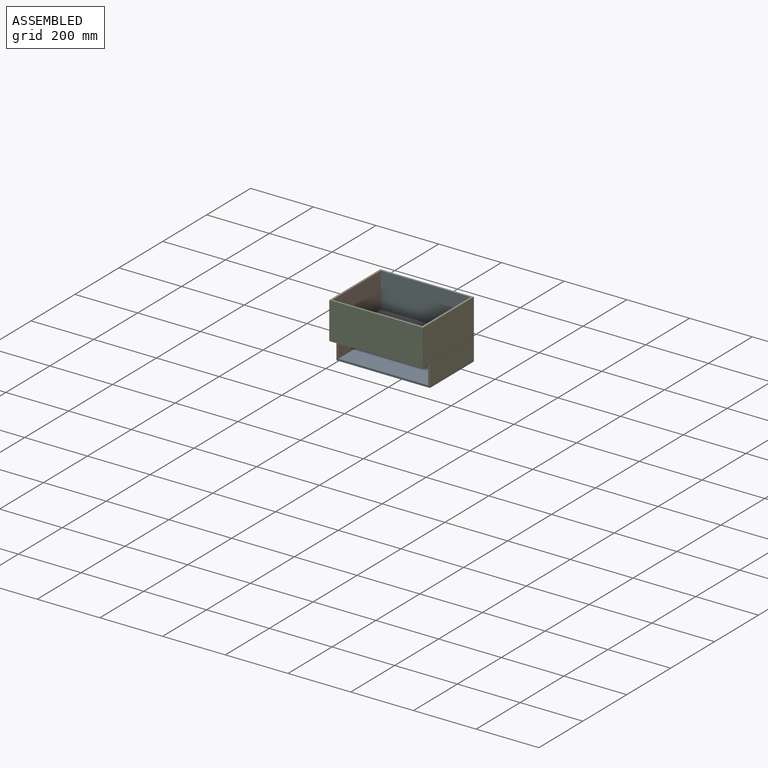
[diagram: assembled view]
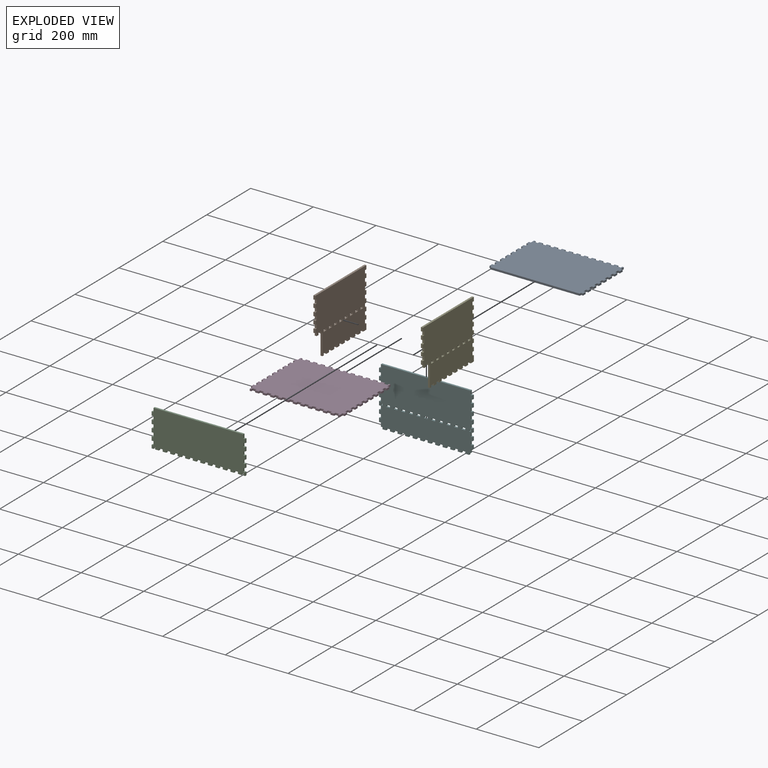
[diagram: exploded view]
GUIDED TOUR — MATED ASSEMBLY (Onshape document dc8e5bcc3b40e1b9c9413de5, AutoMate assembly dc8e5bcc3b40e1b9c9413de5_087644dee2c179cdf5d337a4_95e92eb41b837dada9675b92_default)

This assembly has 6 components, labeled P0..P5 below (a component is one placed occurrence of a part; the same part can appear more than once), held together by 5 mates. A mate is a constraint between two components; its type names the relative motion it leaves free:
  FASTENED — locks the two components together rigidly (no relative motion).
Axis/direction vectors are unit vectors and 'through' points are millimeter coordinates, both in the assembly's world frame.

MATES
  1. FASTENED "Fastened 4": P2 <-> P3, direction (0.000, -1.000, 0.000) through (420.35, -259.68, 232.40) mm
  2. FASTENED "Fastened 1": P4 <-> P3, direction (1.000, 0.000, 0.000) through (431.55, -233.48, 232.40) mm
  3. FASTENED "Fastened 5": P5 <-> P0, direction (0.000, 1.000, 0.000) through (420.35, -27.28, 164.70) mm
  4. FASTENED "Fastened 2": P3 <-> P1, direction (-1.000, 0.000, 0.000) through (133.15, -245.48, 232.40) mm
  5. FASTENED "Fastened 3": P5 <-> P3, direction (0.000, 1.000, 0.000) through (420.35, -27.28, 232.40) mm

ASSEMBLY ORDER
  1. P4 — the base component [order verified]
  2. P1 [order verified]
  3. P5 [order verified]
  4. P0 [order verified]
  5. P3 [order verified]
  6. P2 [order verified]
Order-tag legend:
  [order verified] — this step's position reverses a verified removal order: the component was checked to insert without passing through the ones already placed.

Of the 6 components, 6 carry the full construction recipe — the FeatureScript program that regenerates the part's solid from scratch; the rest are supplied as boundary geometry only.
Each toured component is shown spotlighted twice — in the assembled view, then in the exploded view, where a leader line traces a displaced component back to its assembled socket (saturated green if recipe-attached, orange if geometry-only; every other component desaturated gray) — followed by its recipe or geometry summary and the mates that hold it.
NOTE — this tour is split across 3 documents so each fits a 32k-token context. This is document 1: the component sections continue in the remaining 2 documents, each repeating the header above.
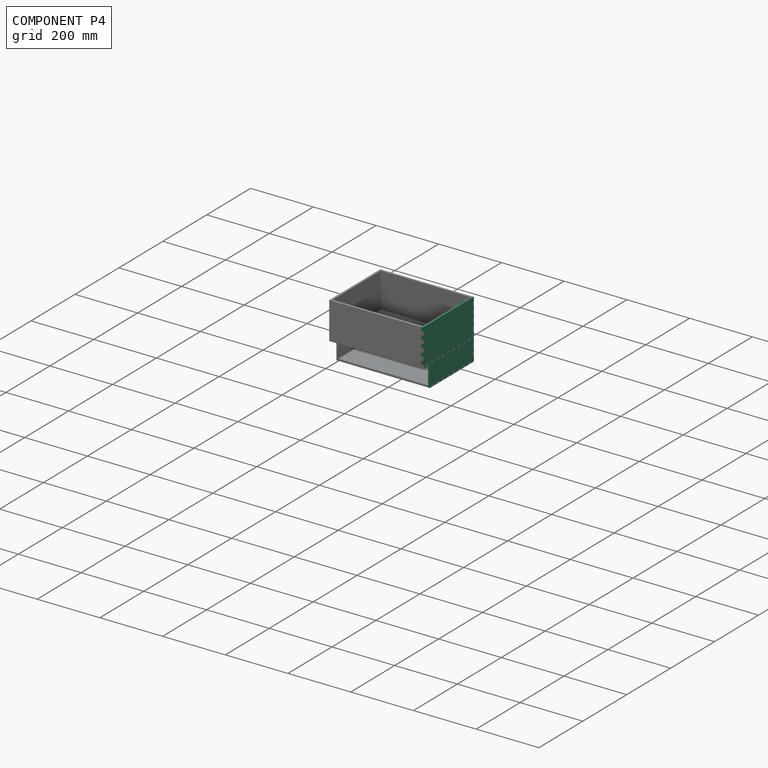
[diagram: component P4 — assembled]
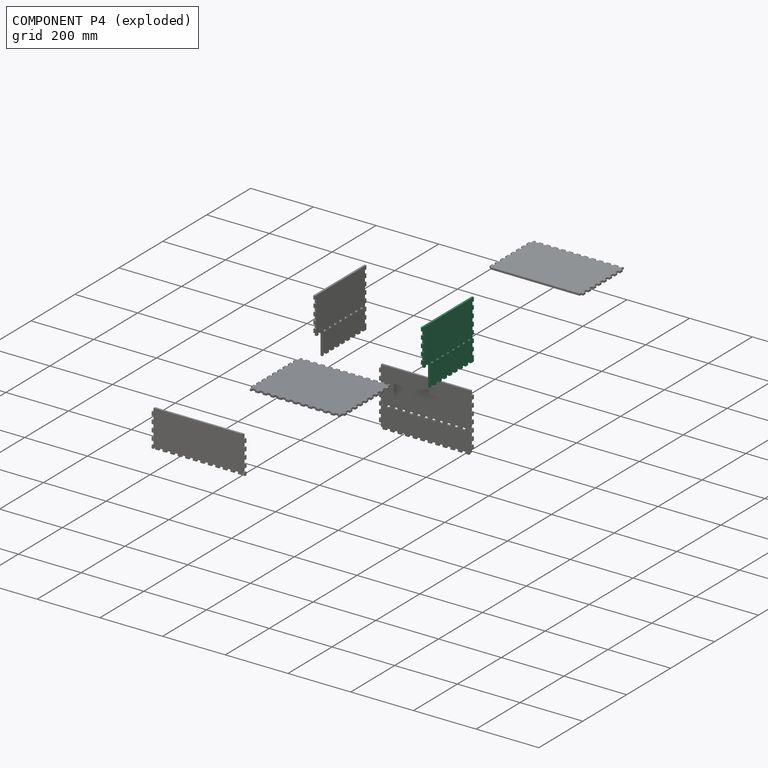
[diagram: component P4 — exploded]
COMPONENT P4 — same part as P1 (CADFS 00861203); its construction recipe is shown at P1.
Held by: FASTENED mate "Fastened 1" to P3.
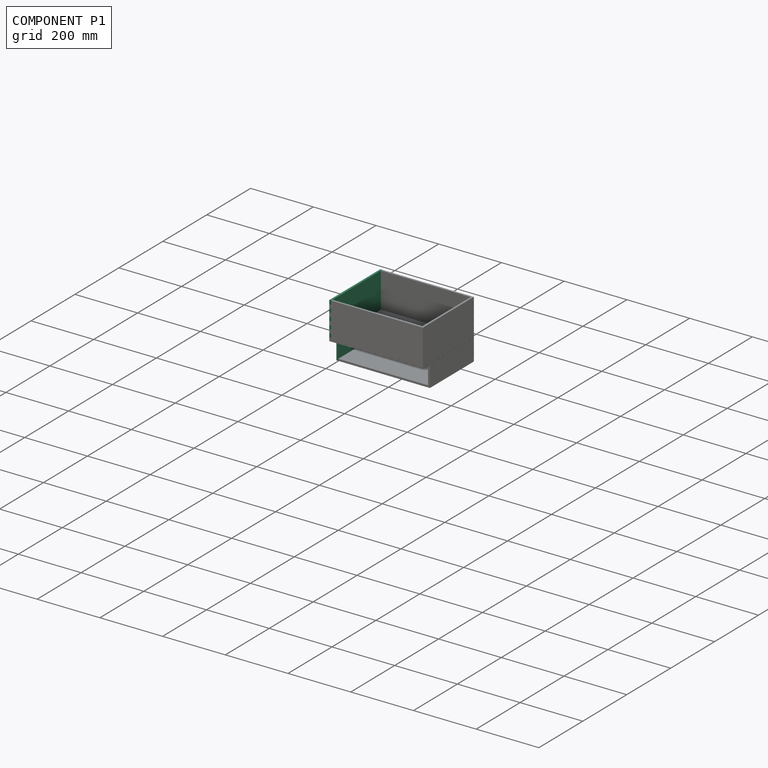
[diagram: component P1 — assembled]
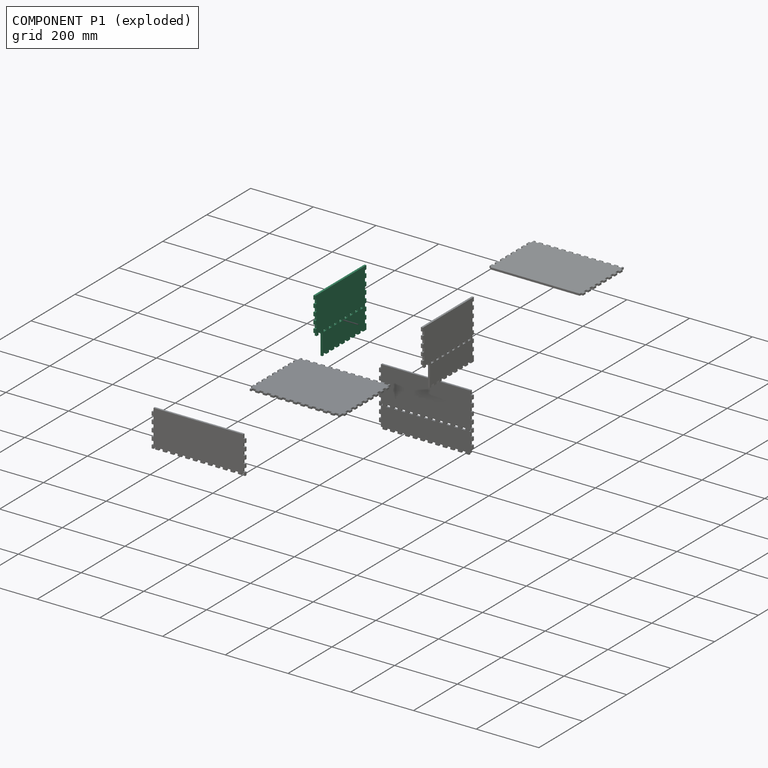
[diagram: component P1 — exploded]
COMPONENT P1 — recipe-attached (CADFS 00861203, mesh-verified: the recipe's output STEP matches this component's geometry to below the mesh-comparison resolution (tessellation chordal tolerance ~0.447 mm)).
Held by: FASTENED mate "Fastened 2" to P3.
Construction recipe (FeatureScript — the CAD program that rebuilds this solid; sketch coordinates are in the units given by the * unit suffixes, e.g. mm):

FeatureScript 1511;
import(path : "onshape/std/geometry.fs", version : "1511.0");
import(path : "onshape/std/common.fs", version : "1511.0");
const mm = millimeter;
const VERTEX = EntityType.VERTEX;
const EDGE = EntityType.EDGE;
const FACE = EntityType.FACE;
const BODY = EntityType.BODY;
function v(x, y){return vector(x, y);}
function OD(order){return orderDisambiguation(order);}
function OSD(set){return originalSetDisambiguation(set);}
function TD(topology){return topologyDisambiguation(topology);}
function TDD(query){return trueDependencyDisambiguation(query);}
function sQuery(a, b, c) {return sketchEntityQuery(a, b, c);}

annotation { "Feature Type Name" : "Feature", "Feature Type Description" : "" }
export const myFeature = defineFeature(function(context is Context, id is Id, definition is map)
    precondition{}
    {
        {
            var Q0;
            Q0=qCreatedBy(makeId("Right.planeOp"),FACE);
            var sketch = newSketch(context, id + "F0", { "sketchPlane" : qUnion([Q0])});
            skLineSegment(sketch, "E0.bottom", {"start": v(110, 90) * mm, "end": v(-110, 90) * mm});
            skLineSegment(sketch, "E0.top", {"start": v(110, -90) * mm, "end": v(-110, -90) * mm});
            skLineSegment(sketch, "E0.left", {"start": v(110, 90) * mm, "end": v(110, -90) * mm});
            skLineSegment(sketch, "E0.right", {"start": v(-110, 90) * mm, "end": v(-110, -90) * mm});
            skPoint(sketch, "E0.middle", {"position": v(0, 0) * mm});
            skSolve(sketch);
        }
        {
            var Q0;
            Q0=makeQuery(id+"F0.imprint","IMPRINT",FACE,{"disambiguationData":[TD([[makeQuery(id+"F0.imprint","IMPRINT",EDGE,{"derivedFrom":sQuery(id+"F0.wireOp",EDGE,"E0.bottom")}),1.0]])]});
            extrude(context, id + "F1", {"entities" : qUnion([Q0]), "depth" : 6.2 * mm, "offsetDistance" : 25 * mm});
        }
        {
            var Q0;
            Q0=makeQuery(id+"F1.opExtrude","CAP_FACE",FACE,{"disambiguationData":[OSD([sQuery(id+"F0.wireOp",EDGE,"E0.bottom"),sQuery(id+"F0.wireOp",EDGE,"E0.top"),sQuery(id+"F0.wireOp",EDGE,"E0.left"),sQuery(id+"F0.wireOp",EDGE,"E0.right")])],"isStart":false});
            var sketch = newSketch(context, id + "F2", { "sketchPlane" : qUnion([Q0])});
            skLineSegment(sketch, "E1", {"start": v(-110, -90) * mm, "end": v(-110, -28.5) * mm, "construction": true});
            skLineSegment(sketch, "E2", {"start": v(-110, -28.5) * mm, "end": v(0, -28.5) * mm, "construction": true});
            skLineSegment(sketch, "E3", {"start": v(0, -28.5) * mm, "end": v(0, -22.3) * mm, "construction": true});
            skPoint(sketch, "E4.orphan", {"position": v(110, -28.5) * mm});
            skLineSegment(sketch, "E5.bottom", {"start": v(6, -22.3) * mm, "end": v(-6, -22.3) * mm});
            skLineSegment(sketch, "E5.top", {"start": v(6, -28.5) * mm, "end": v(-6, -28.5) * mm});
            skLineSegment(sketch, "E5.left", {"start": v(6, -22.3) * mm, "end": v(6, -28.5) * mm});
            skLineSegment(sketch, "E5.right", {"start": v(-6, -22.3) * mm, "end": v(-6, -28.5) * mm});
            skPoint(sketch, "E5.middle", {"position": v(0, -25.4) * mm});
            skLineSegment(sketch, "E6.1.0.0", {"start": v(30, -28.5) * mm, "end": v(18, -28.5) * mm});
            skLineSegment(sketch, "E6.1.0.1", {"start": v(30, -22.3) * mm, "end": v(30, -28.5) * mm});
            skLineSegment(sketch, "E6.1.0.2", {"start": v(30, -22.3) * mm, "end": v(18, -22.3) * mm});
            skLineSegment(sketch, "E6.1.0.3", {"start": v(18, -22.3) * mm, "end": v(18, -28.5) * mm});
            skLineSegment(sketch, "E6.2.0.0", {"start": v(54, -28.5) * mm, "end": v(42, -28.5) * mm});
            skLineSegment(sketch, "E6.2.0.1", {"start": v(54, -22.3) * mm, "end": v(54, -28.5) * mm});
            skLineSegment(sketch, "E6.2.0.2", {"start": v(54, -22.3) * mm, "end": v(42, -22.3) * mm});
            skLineSegment(sketch, "E6.2.0.3", {"start": v(42, -22.3) * mm, "end": v(42, -28.5) * mm});
            skLineSegment(sketch, "E6.3.0.0", {"start": v(78, -28.5) * mm, "end": v(66, -28.5) * mm});
            skLineSegment(sketch, "E6.3.0.1", {"start": v(78, -22.3) * mm, "end": v(78, -28.5) * mm});
            skLineSegment(sketch, "E6.3.0.2", {"start": v(78, -22.3) * mm, "end": v(66, -22.3) * mm});
            skLineSegment(sketch, "E6.3.0.3", {"start": v(66, -22.3) * mm, "end": v(66, -28.5) * mm});
            skLineSegment(sketch, "E6.4.0.0", {"start": v(102, -28.5) * mm, "end": v(90, -28.5) * mm});
            skLineSegment(sketch, "E6.4.0.1", {"start": v(102, -22.3) * mm, "end": v(102, -28.5) * mm});
            skLineSegment(sketch, "E6.4.0.2", {"start": v(102, -22.3) * mm, "end": v(90, -22.3) * mm});
            skLineSegment(sketch, "E6.4.0.3", {"start": v(90, -22.3) * mm, "end": v(90, -28.5) * mm});
            skLineSegment(sketch, "E6.direction1", {"start": v(-6, -28.5) * mm, "end": v(18, -28.5) * mm, "construction": true});
            skLineSegment(sketch, "E7.MirrorCS", {"start": v(-78, -22.3) * mm, "end": v(-78, -28.5) * mm});
            skLineSegment(sketch, "E8.MirrorCS", {"start": v(-66, -22.3) * mm, "end": v(-66, -28.5) * mm});
            skLineSegment(sketch, "E9.MirrorCS", {"start": v(-102, -22.3) * mm, "end": v(-102, -28.5) * mm});
            skLineSegment(sketch, "E10.MirrorCS", {"start": v(-30, -22.3) * mm, "end": v(-30, -28.5) * mm});
            skLineSegment(sketch, "E11.MirrorCS", {"start": v(-42, -22.3) * mm, "end": v(-42, -28.5) * mm});
            skLineSegment(sketch, "E12.MirrorCS", {"start": v(-18, -22.3) * mm, "end": v(-18, -28.5) * mm});
            skLineSegment(sketch, "E13.MirrorCS", {"start": v(-54, -22.3) * mm, "end": v(-54, -28.5) * mm});
            skLineSegment(sketch, "E14.MirrorCS", {"start": v(-90, -22.3) * mm, "end": v(-90, -28.5) * mm});
            skLineSegment(sketch, "E15.MirrorCS", {"start": v(-78, -22.3) * mm, "end": v(-66, -22.3) * mm});
            skLineSegment(sketch, "E16.MirrorCS", {"start": v(-102, -28.5) * mm, "end": v(-90, -28.5) * mm});
            skLineSegment(sketch, "E17.MirrorCS", {"start": v(-102, -22.3) * mm, "end": v(-90, -22.3) * mm});
            skLineSegment(sketch, "E18.MirrorCS", {"start": v(-30, -28.5) * mm, "end": v(-18, -28.5) * mm});
            skLineSegment(sketch, "E19.MirrorCS", {"start": v(-54, -22.3) * mm, "end": v(-42, -22.3) * mm});
            skLineSegment(sketch, "E20.MirrorCS", {"start": v(-54, -28.5) * mm, "end": v(-42, -28.5) * mm});
            skLineSegment(sketch, "E21.MirrorCS", {"start": v(-30, -22.3) * mm, "end": v(-18, -22.3) * mm});
            skLineSegment(sketch, "E22.MirrorCS", {"start": v(-78, -28.5) * mm, "end": v(-66, -28.5) * mm});
            skSolve(sketch);
        }
        {
            var Q0;
            Q0=makeQuery(id+"F2.imprint","IMPRINT",FACE,{"disambiguationData":[TD([[makeQuery(id+"F2.imprint","IMPRINT",EDGE,{"derivedFrom":sQuery(id+"F2.wireOp",EDGE,"E9.MirrorCS")}),1.0]])]});
            var Q1;
            Q1=makeQuery(id+"F2.imprint","IMPRINT",FACE,{"disambiguationData":[TD([[makeQuery(id+"F2.imprint","IMPRINT",EDGE,{"derivedFrom":sQuery(id+"F2.wireOp",EDGE,"E7.MirrorCS")}),1.0]])]});
            var Q2;
            Q2=makeQuery(id+"F2.imprint","IMPRINT",FACE,{"disambiguationData":[TD([[makeQuery(id+"F2.imprint","IMPRINT",EDGE,{"derivedFrom":sQuery(id+"F2.wireOp",EDGE,"E11.MirrorCS")}),-1.0]])]});
            var Q3;
            Q3=makeQuery(id+"F2.imprint","IMPRINT",FACE,{"disambiguationData":[TD([[makeQuery(id+"F2.imprint","IMPRINT",EDGE,{"derivedFrom":sQuery(id+"F2.wireOp",EDGE,"E10.MirrorCS")}),1.0]])]});
            var Q4;
            Q4=makeQuery(id+"F2.imprint","IMPRINT",FACE,{"disambiguationData":[TD([[makeQuery(id+"F2.imprint","IMPRINT",EDGE,{"derivedFrom":sQuery(id+"F2.wireOp",EDGE,"E5.bottom")}),1.0]])]});
            var Q5;
            Q5=makeQuery(id+"F2.imprint","IMPRINT",FACE,{"disambiguationData":[TD([[makeQuery(id+"F2.imprint","IMPRINT",EDGE,{"derivedFrom":sQuery(id+"F2.wireOp",EDGE,"E6.1.0.0")}),-1.0]])]});
            var Q6;
            Q6=makeQuery(id+"F2.imprint","IMPRINT",FACE,{"disambiguationData":[TD([[makeQuery(id+"F2.imprint","IMPRINT",EDGE,{"derivedFrom":sQuery(id+"F2.wireOp",EDGE,"E6.2.0.0")}),-1.0]])]});
            var Q7;
            Q7=makeQuery(id+"F2.imprint","IMPRINT",FACE,{"disambiguationData":[TD([[makeQuery(id+"F2.imprint","IMPRINT",EDGE,{"derivedFrom":sQuery(id+"F2.wireOp",EDGE,"E6.3.0.0")}),-1.0]])]});
            var Q8;
            Q8=makeQuery(id+"F2.imprint","IMPRINT",FACE,{"disambiguationData":[TD([[makeQuery(id+"F2.imprint","IMPRINT",EDGE,{"derivedFrom":sQuery(id+"F2.wireOp",EDGE,"E6.4.0.0")}),-1.0]])]});
            extrude(context, id + "F3", {"entities" : qUnion([Q0, Q1, Q2, Q3, Q4, Q5, Q6, Q7, Q8]), "operationType" : NewBodyOperationType.REMOVE, "endBound" : BoundingType.THROUGH_ALL, "oppositeDirection" : true, "depth" : 25 * mm, "offsetDistance" : 25 * mm});
        }
        {
            var Q0;
            Q0=makeQuery(id+"F1.opExtrude","CAP_FACE",FACE,{"disambiguationData":[OSD([sQuery(id+"F0.wireOp",EDGE,"E0.bottom"),sQuery(id+"F0.wireOp",EDGE,"E0.top"),sQuery(id+"F0.wireOp",EDGE,"E0.left"),sQuery(id+"F0.wireOp",EDGE,"E0.right")])],"isStart":false});
            var sketch = newSketch(context, id + "F4", { "sketchPlane" : qUnion([Q0])});
            skPoint(sketch, "E23.start.orphan", {"position": v(-86, -28.5) * mm});
            skLineSegment(sketch, "E24", {"start": v(-90, -28.5) * mm, "end": v(-78, -28.5) * mm, "construction": true});
            skLineSegment(sketch, "E25.bottom", {"start": v(-84, -28.5) * mm, "end": v(-110, -28.5) * mm});
            skLineSegment(sketch, "E25.top", {"start": v(-84, -90) * mm, "end": v(-110, -90) * mm});
            skLineSegment(sketch, "E25.left", {"start": v(-84, -28.5) * mm, "end": v(-84, -90) * mm});
            skLineSegment(sketch, "E25.right", {"start": v(-110, -28.5) * mm, "end": v(-110, -90) * mm});
            skSolve(sketch);
        }
        {
            var Q0;
            Q0=makeQuery(id+"F4.imprint","IMPRINT",FACE,{"disambiguationData":[TD([[makeQuery(id+"F4.imprint","IMPRINT",EDGE,{"derivedFrom":sQuery(id+"F4.wireOp",EDGE,"E25.top")}),-1.0]])]});
            extrude(context, id + "F5", {"entities" : qUnion([Q0]), "operationType" : NewBodyOperationType.REMOVE, "endBound" : BoundingType.THROUGH_ALL, "oppositeDirection" : true, "depth" : 25 * mm, "offsetDistance" : 25 * mm});
        }
        {
            var Q0;
            Q0=makeQuery(id+"F1.opExtrude","CAP_FACE",FACE,{"disambiguationData":[OSD([sQuery(id+"F0.wireOp",EDGE,"E0.bottom"),sQuery(id+"F0.wireOp",EDGE,"E0.top"),sQuery(id+"F0.wireOp",EDGE,"E0.left"),sQuery(id+"F0.wireOp",EDGE,"E0.right")])],"isStart":false});
            var sketch = newSketch(context, id + "F6", { "sketchPlane" : qUnion([Q0])});
            skLineSegment(sketch, "E26", {"start": v(0, 0) * mm, "end": v(110, 0) * mm, "construction": true});
            skLineSegment(sketch, "E27", {"start": v(110, 0) * mm, "end": v(110, 6) * mm, "construction": true});
            skLineSegment(sketch, "E28.bottom", {"start": v(110, 6) * mm, "end": v(116.2, 6) * mm});
            skLineSegment(sketch, "E28.top", {"start": v(110, 18) * mm, "end": v(116.2, 18) * mm});
            skLineSegment(sketch, "E28.left", {"start": v(110, 6) * mm, "end": v(110, 18) * mm});
            skLineSegment(sketch, "E28.right", {"start": v(116.2, 6) * mm, "end": v(116.2, 18) * mm});
            skLineSegment(sketch, "E29.0.1.0", {"start": v(116.2, 30) * mm, "end": v(116.2, 42) * mm});
            skLineSegment(sketch, "E29.0.1.1", {"start": v(110, 42) * mm, "end": v(116.2, 42) * mm});
            skLineSegment(sketch, "E29.0.1.2", {"start": v(110, 30) * mm, "end": v(110, 42) * mm});
            skLineSegment(sketch, "E29.0.1.3", {"start": v(110, 30) * mm, "end": v(116.2, 30) * mm});
            skLineSegment(sketch, "E29.0.2.0", {"start": v(116.2, 54) * mm, "end": v(116.2, 66) * mm});
            skLineSegment(sketch, "E29.0.2.1", {"start": v(110, 66) * mm, "end": v(116.2, 66) * mm});
            skLineSegment(sketch, "E29.0.2.2", {"start": v(110, 54) * mm, "end": v(110, 66) * mm});
            skLineSegment(sketch, "E29.0.2.3", {"start": v(110, 54) * mm, "end": v(116.2, 54) * mm});
            skLineSegment(sketch, "E29.0.3.0", {"start": v(116.2, 78) * mm, "end": v(116.2, 90) * mm});
            skLineSegment(sketch, "E29.0.3.1", {"start": v(110, 90) * mm, "end": v(116.2, 90) * mm});
            skLineSegment(sketch, "E29.0.3.2", {"start": v(110, 78) * mm, "end": v(110, 90) * mm});
            skLineSegment(sketch, "E29.0.3.3", {"start": v(110, 78) * mm, "end": v(116.2, 78) * mm});
            skLineSegment(sketch, "E29.direction1", {"start": v(116.2, 6) * mm, "end": v(141.2, 6) * mm, "construction": true});
            skLineSegment(sketch, "E29.direction2", {"start": v(116.2, 6) * mm, "end": v(116.2, 30) * mm, "construction": true});
            skLineSegment(sketch, "E30.MirrorCS", {"start": v(116.2, -6) * mm, "end": v(116.2, -18) * mm});
            skLineSegment(sketch, "E31.MirrorCS", {"start": v(110, -42) * mm, "end": v(116.2, -42) * mm});
            skLineSegment(sketch, "E32.MirrorCS", {"start": v(116.2, -6) * mm, "end": v(116.2, -30) * mm, "construction": true});
            skLineSegment(sketch, "E33.MirrorCS", {"start": v(116.2, -30) * mm, "end": v(116.2, -42) * mm});
            skLineSegment(sketch, "E34.MirrorCS", {"start": v(110, -54) * mm, "end": v(110, -66) * mm});
            skLineSegment(sketch, "E35.MirrorCS", {"start": v(116.2, -78) * mm, "end": v(116.2, -90) * mm});
            skLineSegment(sketch, "E36.MirrorCS", {"start": v(110, -66) * mm, "end": v(116.2, -66) * mm});
            skLineSegment(sketch, "E37.MirrorCS", {"start": v(110, -54) * mm, "end": v(116.2, -54) * mm});
            skLineSegment(sketch, "E38.MirrorCS", {"start": v(110, -18) * mm, "end": v(116.2, -18) * mm});
            skLineSegment(sketch, "E39.MirrorCS", {"start": v(110, -6) * mm, "end": v(110, -18) * mm});
            skLineSegment(sketch, "E40.MirrorCS", {"start": v(110, -90) * mm, "end": v(116.2, -90) * mm});
            skLineSegment(sketch, "E41.MirrorCS", {"start": v(110, -78) * mm, "end": v(116.2, -78) * mm});
            skLineSegment(sketch, "E42.MirrorCS", {"start": v(110, -6) * mm, "end": v(116.2, -6) * mm});
            skLineSegment(sketch, "E43.MirrorCS", {"start": v(116.2, -54) * mm, "end": v(116.2, -66) * mm});
            skLineSegment(sketch, "E44.MirrorCS", {"start": v(110, -30) * mm, "end": v(116.2, -30) * mm});
            skLineSegment(sketch, "E45.MirrorCS", {"start": v(110, -30) * mm, "end": v(110, -42) * mm});
            skLineSegment(sketch, "E46.MirrorCS", {"start": v(110, -78) * mm, "end": v(110, -90) * mm});
            skLineSegment(sketch, "E47.MirrorCS", {"start": v(-110, 0) * mm, "end": v(-110, 6) * mm, "construction": true});
            skLineSegment(sketch, "E48.MirrorCS", {"start": v(-110, 6) * mm, "end": v(-116.2, 6) * mm});
            skLineSegment(sketch, "E49.MirrorCS", {"start": v(-110, -6) * mm, "end": v(-116.2, -6) * mm});
            skLineSegment(sketch, "E50.MirrorCS", {"start": v(-110, 30) * mm, "end": v(-116.2, 30) * mm});
            skLineSegment(sketch, "E51.MirrorCS", {"start": v(-110, 42) * mm, "end": v(-116.2, 42) * mm});
            skLineSegment(sketch, "E52.MirrorCS", {"start": v(-116.2, 6) * mm, "end": v(-116.2, 30) * mm, "construction": true});
            skLineSegment(sketch, "E53.MirrorCS", {"start": v(-116.2, 30) * mm, "end": v(-116.2, 42) * mm});
            skLineSegment(sketch, "E54.MirrorCS", {"start": v(-116.2, -6) * mm, "end": v(-116.2, -18) * mm});
            skLineSegment(sketch, "E55.MirrorCS", {"start": v(-110, -6) * mm, "end": v(-110, -18) * mm});
            skLineSegment(sketch, "E56.MirrorCS", {"start": v(-116.2, 6) * mm, "end": v(-116.2, 18) * mm});
            skLineSegment(sketch, "E57.MirrorCS", {"start": v(-110, 30) * mm, "end": v(-110, 42) * mm});
            skLineSegment(sketch, "E58.MirrorCS", {"start": v(-116.2, 78) * mm, "end": v(-116.2, 90) * mm});
            skLineSegment(sketch, "E59.MirrorCS", {"start": v(-110, 54) * mm, "end": v(-116.2, 54) * mm});
            skLineSegment(sketch, "E60.MirrorCS", {"start": v(-110, 66) * mm, "end": v(-116.2, 66) * mm});
            skLineSegment(sketch, "E61.MirrorCS", {"start": v(-116.2, 54) * mm, "end": v(-116.2, 66) * mm});
            skLineSegment(sketch, "E62.MirrorCS", {"start": v(-110, -18) * mm, "end": v(-116.2, -18) * mm});
            skLineSegment(sketch, "E63.MirrorCS", {"start": v(-110, 18) * mm, "end": v(-116.2, 18) * mm});
            skLineSegment(sketch, "E64.MirrorCS", {"start": v(-110, 54) * mm, "end": v(-110, 66) * mm});
            skLineSegment(sketch, "E65.MirrorCS", {"start": v(-116.2, -6) * mm, "end": v(-116.2, -30) * mm, "construction": true});
            skLineSegment(sketch, "E66.MirrorCS", {"start": v(-110, 78) * mm, "end": v(-110, 90) * mm});
            skLineSegment(sketch, "E67.MirrorCS", {"start": v(-110, 6) * mm, "end": v(-110, 18) * mm});
            skLineSegment(sketch, "E68.MirrorCS", {"start": v(-110, 90) * mm, "end": v(-116.2, 90) * mm});
            skLineSegment(sketch, "E69.MirrorCS", {"start": v(-110, 78) * mm, "end": v(-116.2, 78) * mm});
            skLineSegment(sketch, "E70.MirrorCS", {"start": v(-116.2, 6) * mm, "end": v(-141.2, 6) * mm, "construction": true});
            skPoint(sketch, "E71.MirrorCS.start.orphan", {"position": v(-110, -30) * mm});
            skPoint(sketch, "E72.MirrorCS.end.orphan", {"position": v(-116.2, -42) * mm});
            skPoint(sketch, "E72.MirrorCS.start.orphan", {"position": v(-110, -42) * mm});
            skSolve(sketch);
        }
        {
            var Q0;
            Q0 = qSketchRegion(id + "F6", true);
            extrude(context, id + "F7", {"entities" : qUnion([Q0]), "operationType" : NewBodyOperationType.ADD, "oppositeDirection" : true, "depth" : 6.2 * mm, "offsetDistance" : 25 * mm});
        }
        {
            var Q0;
            Q0=makeQuery(id+"F7.boolean.opBoolean","MERGE",FACE,{"derivedFrom":[makeQuery(id+"F1.opExtrude","CAP_FACE",FACE,{"disambiguationData":[OSD([sQuery(id+"F0.wireOp",EDGE,"E0.bottom"),sQuery(id+"F0.wireOp",EDGE,"E0.top"),sQuery(id+"F0.wireOp",EDGE,"E0.left"),sQuery(id+"F0.wireOp",EDGE,"E0.right")])],"isStart":false}),makeQuery(id+"F7.opExtrude","CAP_FACE",FACE,{"disambiguationData":[OSD([sQuery(id+"F6.wireOp",EDGE,"E28.bottom"),sQuery(id+"F6.wireOp",EDGE,"E28.top"),sQuery(id+"F6.wireOp",EDGE,"E28.left"),sQuery(id+"F6.wireOp",EDGE,"E28.right")])],"isStart":true}),makeQuery(id+"F7.opExtrude","CAP_FACE",FACE,{"disambiguationData":[OSD([sQuery(id+"F6.wireOp",EDGE,"E29.0.1.0"),sQuery(id+"F6.wireOp",EDGE,"E29.0.1.1"),sQuery(id+"F6.wireOp",EDGE,"E29.0.1.2"),sQuery(id+"F6.wireOp",EDGE,"E29.0.1.3")])],"isStart":true}),makeQuery(id+"F7.opExtrude","CAP_FACE",FACE,{"disambiguationData":[OSD([sQuery(id+"F6.wireOp",EDGE,"E29.0.2.0"),sQuery(id+"F6.wireOp",EDGE,"E29.0.2.1"),sQuery(id+"F6.wireOp",EDGE,"E29.0.2.2"),sQuery(id+"F6.wireOp",EDGE,"E29.0.2.3")])],"isStart":true}),makeQuery(id+"F7.opExtrude","CAP_FACE",FACE,{"disambiguationData":[OSD([sQuery(id+"F6.wireOp",EDGE,"E29.0.3.0"),sQuery(id+"F6.wireOp",EDGE,"E29.0.3.1"),sQuery(id+"F6.wireOp",EDGE,"E29.0.3.2"),sQuery(id+"F6.wireOp",EDGE,"E29.0.3.3")])],"isStart":true}),makeQuery(id+"F7.opExtrude","CAP_FACE",FACE,{"disambiguationData":[OSD([sQuery(id+"F6.wireOp",EDGE,"E30.MirrorCS"),sQuery(id+"F6.wireOp",EDGE,"E38.MirrorCS"),sQuery(id+"F6.wireOp",EDGE,"E39.MirrorCS"),sQuery(id+"F6.wireOp",EDGE,"E42.MirrorCS")])],"isStart":true}),makeQuery(id+"F7.opExtrude","CAP_FACE",FACE,{"disambiguationData":[OSD([sQuery(id+"F6.wireOp",EDGE,"E31.MirrorCS"),sQuery(id+"F6.wireOp",EDGE,"E33.MirrorCS"),sQuery(id+"F6.wireOp",EDGE,"E44.MirrorCS"),sQuery(id+"F6.wireOp",EDGE,"E45.MirrorCS")])],"isStart":true}),makeQuery(id+"F7.opExtrude","CAP_FACE",FACE,{"disambiguationData":[OSD([sQuery(id+"F6.wireOp",EDGE,"E34.MirrorCS"),sQuery(id+"F6.wireOp",EDGE,"E36.MirrorCS"),sQuery(id+"F6.wireOp",EDGE,"E37.MirrorCS"),sQuery(id+"F6.wireOp",EDGE,"E43.MirrorCS")])],"isStart":true}),makeQuery(id+"F7.opExtrude","CAP_FACE",FACE,{"disambiguationData":[OSD([sQuery(id+"F6.wireOp",EDGE,"E35.MirrorCS"),sQuery(id+"F6.wireOp",EDGE,"E40.MirrorCS"),sQuery(id+"F6.wireOp",EDGE,"E41.MirrorCS"),sQuery(id+"F6.wireOp",EDGE,"E46.MirrorCS")])],"isStart":true}),makeQuery(id+"F7.opExtrude","CAP_FACE",FACE,{"disambiguationData":[OSD([sQuery(id+"F6.wireOp",EDGE,"E48.MirrorCS"),sQuery(id+"F6.wireOp",EDGE,"E56.MirrorCS"),sQuery(id+"F6.wireOp",EDGE,"E63.MirrorCS"),sQuery(id+"F6.wireOp",EDGE,"E67.MirrorCS")])],"isStart":true}),makeQuery(id+"F7.opExtrude","CAP_FACE",FACE,{"disambiguationData":[OSD([sQuery(id+"F6.wireOp",EDGE,"E49.MirrorCS"),sQuery(id+"F6.wireOp",EDGE,"E54.MirrorCS"),sQuery(id+"F6.wireOp",EDGE,"E55.MirrorCS"),sQuery(id+"F6.wireOp",EDGE,"E62.MirrorCS")])],"isStart":true}),makeQuery(id+"F7.opExtrude","CAP_FACE",FACE,{"disambiguationData":[OSD([sQuery(id+"F6.wireOp",EDGE,"E50.MirrorCS"),sQuery(id+"F6.wireOp",EDGE,"E51.MirrorCS"),sQuery(id+"F6.wireOp",EDGE,"E53.MirrorCS"),sQuery(id+"F6.wireOp",EDGE,"E57.MirrorCS")])],"isStart":true}),makeQuery(id+"F7.opExtrude","CAP_FACE",FACE,{"disambiguationData":[OSD([sQuery(id+"F6.wireOp",EDGE,"E58.MirrorCS"),sQuery(id+"F6.wireOp",EDGE,"E66.MirrorCS"),sQuery(id+"F6.wireOp",EDGE,"E68.MirrorCS"),sQuery(id+"F6.wireOp",EDGE,"E69.MirrorCS")])],"isStart":true}),makeQuery(id+"F7.opExtrude","CAP_FACE",FACE,{"disambiguationData":[OSD([sQuery(id+"F6.wireOp",EDGE,"E59.MirrorCS"),sQuery(id+"F6.wireOp",EDGE,"E60.MirrorCS"),sQuery(id+"F6.wireOp",EDGE,"E61.MirrorCS"),sQuery(id+"F6.wireOp",EDGE,"E64.MirrorCS")])],"isStart":true})]});
            var sketch = newSketch(context, id + "F8", { "sketchPlane" : qUnion([Q0])});
            skLineSegment(sketch, "E73.bottom", {"start": v(-84, -90) * mm, "end": v(-78, -90) * mm});
            skLineSegment(sketch, "E73.top", {"start": v(-84, -96.2) * mm, "end": v(-78, -96.2) * mm});
            skLineSegment(sketch, "E73.left", {"start": v(-84, -90) * mm, "end": v(-84, -96.2) * mm});
            skLineSegment(sketch, "E73.right", {"start": v(-78, -90) * mm, "end": v(-78, -96.2) * mm});
            skLineSegment(sketch, "E74", {"start": v(-78, -90) * mm, "end": v(-66, -90) * mm, "construction": true});
            skLineSegment(sketch, "E75.bottom", {"start": v(-66, -90) * mm, "end": v(-54, -90) * mm});
            skLineSegment(sketch, "E75.top", {"start": v(-66, -96.2) * mm, "end": v(-54, -96.2) * mm});
            skLineSegment(sketch, "E75.left", {"start": v(-66, -90) * mm, "end": v(-66, -96.2) * mm});
            skLineSegment(sketch, "E75.right", {"start": v(-54, -90) * mm, "end": v(-54, -96.2) * mm});
            skLineSegment(sketch, "E76.1.0.0", {"start": v(-42, -96.2) * mm, "end": v(-30, -96.2) * mm});
            skLineSegment(sketch, "E76.1.0.1", {"start": v(-30, -90) * mm, "end": v(-30, -96.2) * mm});
            skLineSegment(sketch, "E76.1.0.2", {"start": v(-42, -90) * mm, "end": v(-30, -90) * mm});
            skLineSegment(sketch, "E76.1.0.3", {"start": v(-42, -90) * mm, "end": v(-42, -96.2) * mm});
            skLineSegment(sketch, "E76.1.0.4", {"start": v(-54, -90) * mm, "end": v(-42, -90) * mm, "construction": true});
            skLineSegment(sketch, "E76.2.0.0", {"start": v(-18, -96.2) * mm, "end": v(-6, -96.2) * mm});
            skLineSegment(sketch, "E76.2.0.1", {"start": v(-6, -90) * mm, "end": v(-6, -96.2) * mm});
            skLineSegment(sketch, "E76.2.0.2", {"start": v(-18, -90) * mm, "end": v(-6, -90) * mm});
            skLineSegment(sketch, "E76.2.0.3", {"start": v(-18, -90) * mm, "end": v(-18, -96.2) * mm});
            skLineSegment(sketch, "E76.2.0.4", {"start": v(-30, -90) * mm, "end": v(-18, -90) * mm, "construction": true});
            skLineSegment(sketch, "E76.3.0.0", {"start": v(6, -96.2) * mm, "end": v(18, -96.2) * mm});
            skLineSegment(sketch, "E76.3.0.1", {"start": v(18, -90) * mm, "end": v(18, -96.2) * mm});
            skLineSegment(sketch, "E76.3.0.2", {"start": v(6, -90) * mm, "end": v(18, -90) * mm});
            skLineSegment(sketch, "E76.3.0.3", {"start": v(6, -90) * mm, "end": v(6, -96.2) * mm});
            skLineSegment(sketch, "E76.3.0.4", {"start": v(-6, -90) * mm, "end": v(6, -90) * mm, "construction": true});
            skLineSegment(sketch, "E76.4.0.0", {"start": v(30, -96.2) * mm, "end": v(42, -96.2) * mm});
            skLineSegment(sketch, "E76.4.0.1", {"start": v(42, -90) * mm, "end": v(42, -96.2) * mm});
            skLineSegment(sketch, "E76.4.0.2", {"start": v(30, -90) * mm, "end": v(42, -90) * mm});
            skLineSegment(sketch, "E76.4.0.3", {"start": v(30, -90) * mm, "end": v(30, -96.2) * mm});
            skLineSegment(sketch, "E76.4.0.4", {"start": v(18, -90) * mm, "end": v(30, -90) * mm, "construction": true});
            skLineSegment(sketch, "E76.5.0.0", {"start": v(54, -96.2) * mm, "end": v(66, -96.2) * mm});
            skLineSegment(sketch, "E76.5.0.1", {"start": v(66, -90) * mm, "end": v(66, -96.2) * mm});
            skLineSegment(sketch, "E76.5.0.2", {"start": v(54, -90) * mm, "end": v(66, -90) * mm});
            skLineSegment(sketch, "E76.5.0.3", {"start": v(54, -90) * mm, "end": v(54, -96.2) * mm});
            skLineSegment(sketch, "E76.5.0.4", {"start": v(42, -90) * mm, "end": v(54, -90) * mm, "construction": true});
            skLineSegment(sketch, "E76.6.0.0", {"start": v(78, -96.2) * mm, "end": v(90, -96.2) * mm});
            skLineSegment(sketch, "E76.6.0.1", {"start": v(90, -90) * mm, "end": v(90, -96.2) * mm});
            skLineSegment(sketch, "E76.6.0.2", {"start": v(78, -90) * mm, "end": v(90, -90) * mm});
            skLineSegment(sketch, "E76.6.0.3", {"start": v(78, -90) * mm, "end": v(78, -96.2) * mm});
            skLineSegment(sketch, "E76.6.0.4", {"start": v(66, -90) * mm, "end": v(78, -90) * mm, "construction": true});
            skLineSegment(sketch, "E76.7.0.0", {"start": v(102, -96.2) * mm, "end": v(114, -96.2) * mm});
            skLineSegment(sketch, "E76.7.0.1", {"start": v(114, -90) * mm, "end": v(114, -96.2) * mm});
            skLineSegment(sketch, "E76.7.0.2", {"start": v(102, -90) * mm, "end": v(114, -90) * mm});
            skLineSegment(sketch, "E76.7.0.3", {"start": v(102, -90) * mm, "end": v(102, -96.2) * mm});
            skLineSegment(sketch, "E76.7.0.4", {"start": v(90, -90) * mm, "end": v(102, -90) * mm, "construction": true});
            skLineSegment(sketch, "E76.direction1", {"start": v(-78, -90) * mm, "end": v(-54, -90) * mm, "construction": true});
            skSolve(sketch);
        }
        {
            var Q0;
            Q0 = qSketchRegion(id + "F8", true);
            extrude(context, id + "F9", {"entities" : qUnion([Q0]), "operationType" : NewBodyOperationType.ADD, "oppositeDirection" : true, "depth" : 6.2 * mm, "offsetDistance" : 25 * mm});
        }
        {
            var Q0;
            Q0=makeQuery(id+"F9.boolean.opBoolean","MERGE",FACE,{"derivedFrom":[makeQuery(id+"F7.boolean.opBoolean","MERGE",FACE,{"derivedFrom":[makeQuery(id+"F1.opExtrude","CAP_FACE",FACE,{"disambiguationData":[OSD([sQuery(id+"F0.wireOp",EDGE,"E0.bottom"),sQuery(id+"F0.wireOp",EDGE,"E0.top"),sQuery(id+"F0.wireOp",EDGE,"E0.left"),sQuery(id+"F0.wireOp",EDGE,"E0.right")])],"isStart":false}),makeQuery(id+"F7.opExtrude","CAP_FACE",FACE,{"disambiguationData":[OSD([sQuery(id+"F6.wireOp",EDGE,"E28.bottom"),sQuery(id+"F6.wireOp",EDGE,"E28.top"),sQuery(id+"F6.wireOp",EDGE,"E28.left"),sQuery(id+"F6.wireOp",EDGE,"E28.right")])],"isStart":true}),makeQuery(id+"F7.opExtrude","CAP_FACE",FACE,{"disambiguationData":[OSD([sQuery(id+"F6.wireOp",EDGE,"E29.0.1.0"),sQuery(id+"F6.wireOp",EDGE,"E29.0.1.1"),sQuery(id+"F6.wireOp",EDGE,"E29.0.1.2"),sQuery(id+"F6.wireOp",EDGE,"E29.0.1.3")])],"isStart":true}),makeQuery(id+"F7.opExtrude","CAP_FACE",FACE,{"disambiguationData":[OSD([sQuery(id+"F6.wireOp",EDGE,"E29.0.2.0"),sQuery(id+"F6.wireOp",EDGE,"E29.0.2.1"),sQuery(id+"F6.wireOp",EDGE,"E29.0.2.2"),sQuery(id+"F6.wireOp",EDGE,"E29.0.2.3")])],"isStart":true}),makeQuery(id+"F7.opExtrude","CAP_FACE",FACE,{"disambiguationData":[OSD([sQuery(id+"F6.wireOp",EDGE,"E29.0.3.0"),sQuery(id+"F6.wireOp",EDGE,"E29.0.3.1"),sQuery(id+"F6.wireOp",EDGE,"E29.0.3.2"),sQuery(id+"F6.wireOp",EDGE,"E29.0.3.3")])],"isStart":true}),makeQuery(id+"F7.opExtrude","CAP_FACE",FACE,{"disambiguationData":[OSD([sQuery(id+"F6.wireOp",EDGE,"E30.MirrorCS"),sQuery(id+"F6.wireOp",EDGE,"E38.MirrorCS"),sQuery(id+"F6.wireOp",EDGE,"E39.MirrorCS"),sQuery(id+"F6.wireOp",EDGE,"E42.MirrorCS")])],"isStart":true}),makeQuery(id+"F7.opExtrude","CAP_FACE",FACE,{"disambiguationData":[OSD([sQuery(id+"F6.wireOp",EDGE,"E31.MirrorCS"),sQuery(id+"F6.wireOp",EDGE,"E33.MirrorCS"),sQuery(id+"F6.wireOp",EDGE,"E44.MirrorCS"),sQuery(id+"F6.wireOp",EDGE,"E45.MirrorCS")])],"isStart":true}),makeQuery(id+"F7.opExtrude","CAP_FACE",FACE,{"disambiguationData":[OSD([sQuery(id+"F6.wireOp",EDGE,"E34.MirrorCS"),sQuery(id+"F6.wireOp",EDGE,"E36.MirrorCS"),sQuery(id+"F6.wireOp",EDGE,"E37.MirrorCS"),sQuery(id+"F6.wireOp",EDGE,"E43.MirrorCS")])],"isStart":true}),makeQuery(id+"F7.opExtrude","CAP_FACE",FACE,{"disambiguationData":[OSD([sQuery(id+"F6.wireOp",EDGE,"E35.MirrorCS"),sQuery(id+"F6.wireOp",EDGE,"E40.MirrorCS"),sQuery(id+"F6.wireOp",EDGE,"E41.MirrorCS"),sQuery(id+"F6.wireOp",EDGE,"E46.MirrorCS")])],"isStart":true}),makeQuery(id+"F7.opExtrude","CAP_FACE",FACE,{"disambiguationData":[OSD([sQuery(id+"F6.wireOp",EDGE,"E48.MirrorCS"),sQuery(id+"F6.wireOp",EDGE,"E56.MirrorCS"),sQuery(id+"F6.wireOp",EDGE,"E63.MirrorCS"),sQuery(id+"F6.wireOp",EDGE,"E67.MirrorCS")])],"isStart":true}),makeQuery(id+"F7.opExtrude","CAP_FACE",FACE,{"disambiguationData":[OSD([sQuery(id+"F6.wireOp",EDGE,"E49.MirrorCS"),sQuery(id+"F6.wireOp",EDGE,"E54.MirrorCS"),sQuery(id+"F6.wireOp",EDGE,"E55.MirrorCS"),sQuery(id+"F6.wireOp",EDGE,"E62.MirrorCS")])],"isStart":true}),makeQuery(id+"F7.opExtrude","CAP_FACE",FACE,{"disambiguationData":[OSD([sQuery(id+"F6.wireOp",EDGE,"E50.MirrorCS"),sQuery(id+"F6.wireOp",EDGE,"E51.MirrorCS"),sQuery(id+"F6.wireOp",EDGE,"E53.MirrorCS"),sQuery(id+"F6.wireOp",EDGE,"E57.MirrorCS")])],"isStart":true}),makeQuery(id+"F7.opExtrude","CAP_FACE",FACE,{"disambiguationData":[OSD([sQuery(id+"F6.wireOp",EDGE,"E58.MirrorCS"),sQuery(id+"F6.wireOp",EDGE,"E66.MirrorCS"),sQuery(id+"F6.wireOp",EDGE,"E68.MirrorCS"),sQuery(id+"F6.wireOp",EDGE,"E69.MirrorCS")])],"isStart":true}),makeQuery(id+"F7.opExtrude","CAP_FACE",FACE,{"disambiguationData":[OSD([sQuery(id+"F6.wireOp",EDGE,"E59.MirrorCS"),sQuery(id+"F6.wireOp",EDGE,"E60.MirrorCS"),sQuery(id+"F6.wireOp",EDGE,"E61.MirrorCS"),sQuery(id+"F6.wireOp",EDGE,"E64.MirrorCS")])],"isStart":true})]}),makeQuery(id+"F9.opExtrude","CAP_FACE",FACE,{"disambiguationData":[OSD([sQuery(id+"F8.wireOp",EDGE,"E73.bottom"),sQuery(id+"F8.wireOp",EDGE,"E73.top"),sQuery(id+"F8.wireOp",EDGE,"E73.left"),sQuery(id+"F8.wireOp",EDGE,"E73.right")])],"isStart":true}),makeQuery(id+"F9.opExtrude","CAP_FACE",FACE,{"disambiguationData":[OSD([sQuery(id+"F8.wireOp",EDGE,"E75.bottom"),sQuery(id+"F8.wireOp",EDGE,"E75.top"),sQuery(id+"F8.wireOp",EDGE,"E75.left"),sQuery(id+"F8.wireOp",EDGE,"E75.right")])],"isStart":true}),makeQuery(id+"F9.opExtrude","CAP_FACE",FACE,{"disambiguationData":[OSD([sQuery(id+"F8.wireOp",EDGE,"E76.1.0.0"),sQuery(id+"F8.wireOp",EDGE,"E76.1.0.1"),sQuery(id+"F8.wireOp",EDGE,"E76.1.0.2"),sQuery(id+"F8.wireOp",EDGE,"E76.1.0.3")])],"isStart":true}),makeQuery(id+"F9.opExtrude","CAP_FACE",FACE,{"disambiguationData":[OSD([sQuery(id+"F8.wireOp",EDGE,"E76.2.0.0"),sQuery(id+"F8.wireOp",EDGE,"E76.2.0.1"),sQuery(id+"F8.wireOp",EDGE,"E76.2.0.2"),sQuery(id+"F8.wireOp",EDGE,"E76.2.0.3")])],"isStart":true}),makeQuery(id+"F9.opExtrude","CAP_FACE",FACE,{"disambiguationData":[OSD([sQuery(id+"F8.wireOp",EDGE,"E76.3.0.0"),sQuery(id+"F8.wireOp",EDGE,"E76.3.0.1"),sQuery(id+"F8.wireOp",EDGE,"E76.3.0.2"),sQuery(id+"F8.wireOp",EDGE,"E76.3.0.3")])],"isStart":true}),makeQuery(id+"F9.opExtrude","CAP_FACE",FACE,{"disambiguationData":[OSD([sQuery(id+"F8.wireOp",EDGE,"E76.4.0.0"),sQuery(id+"F8.wireOp",EDGE,"E76.4.0.1"),sQuery(id+"F8.wireOp",EDGE,"E76.4.0.2"),sQuery(id+"F8.wireOp",EDGE,"E76.4.0.3")])],"isStart":true}),makeQuery(id+"F9.opExtrude","CAP_FACE",FACE,{"disambiguationData":[OSD([sQuery(id+"F8.wireOp",EDGE,"E76.5.0.0"),sQuery(id+"F8.wireOp",EDGE,"E76.5.0.1"),sQuery(id+"F8.wireOp",EDGE,"E76.5.0.2"),sQuery(id+"F8.wireOp",EDGE,"E76.5.0.3")])],"isStart":true}),makeQuery(id+"F9.opExtrude","CAP_FACE",FACE,{"disambiguationData":[OSD([sQuery(id+"F8.wireOp",EDGE,"E76.6.0.0"),sQuery(id+"F8.wireOp",EDGE,"E76.6.0.1"),sQuery(id+"F8.wireOp",EDGE,"E76.6.0.2"),sQuery(id+"F8.wireOp",EDGE,"E76.6.0.3")])],"isStart":true}),makeQuery(id+"F9.opExtrude","CAP_FACE",FACE,{"disambiguationData":[OSD([sQuery(id+"F8.wireOp",EDGE,"E76.7.0.0"),sQuery(id+"F8.wireOp",EDGE,"E76.7.0.1"),sQuery(id+"F8.wireOp",EDGE,"E76.7.0.2"),sQuery(id+"F8.wireOp",EDGE,"E76.7.0.3")])],"isStart":true})]});
            var sketch = newSketch(context, id + "F10", { "sketchPlane" : qUnion([Q0])});
            skLineSegment(sketch, "E77.bottom", {"start": v(116.2, -90) * mm, "end": v(114, -90) * mm});
            skLineSegment(sketch, "E77.top", {"start": v(116.2, -96.2) * mm, "end": v(114, -96.2) * mm});
            skLineSegment(sketch, "E77.left", {"start": v(116.2, -90) * mm, "end": v(116.2, -96.2) * mm});
            skLineSegment(sketch, "E77.right", {"start": v(114, -90) * mm, "end": v(114, -96.2) * mm});
            skSolve(sketch);
        }
        {
            var Q0;
            Q0 = qSketchRegion(id + "F10", true);
            extrude(context, id + "F11", {"entities" : qUnion([Q0]), "operationType" : NewBodyOperationType.ADD, "oppositeDirection" : true, "depth" : 6.2 * mm, "offsetDistance" : 25 * mm});
        }
    });
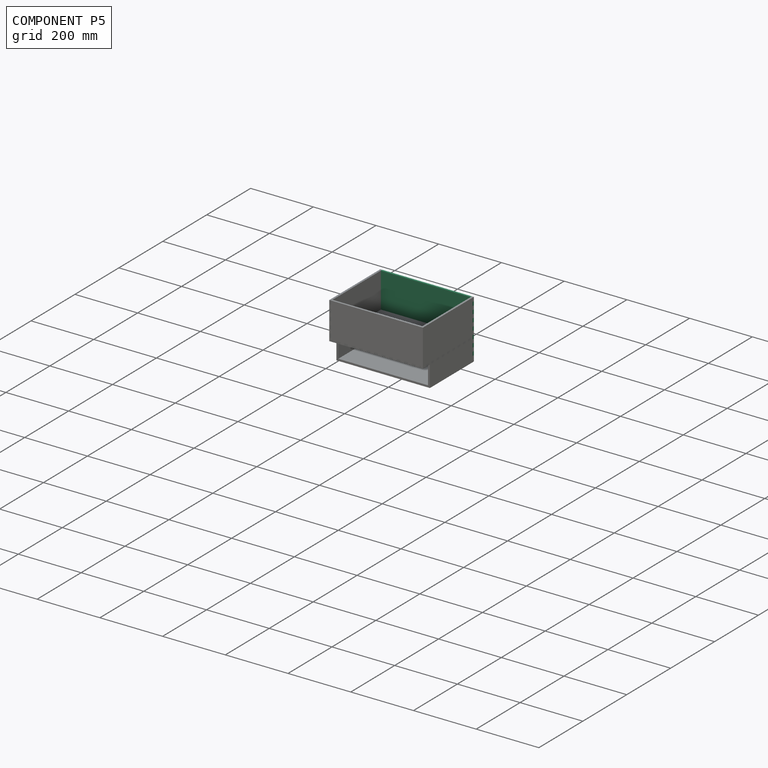
[diagram: component P5 — assembled]
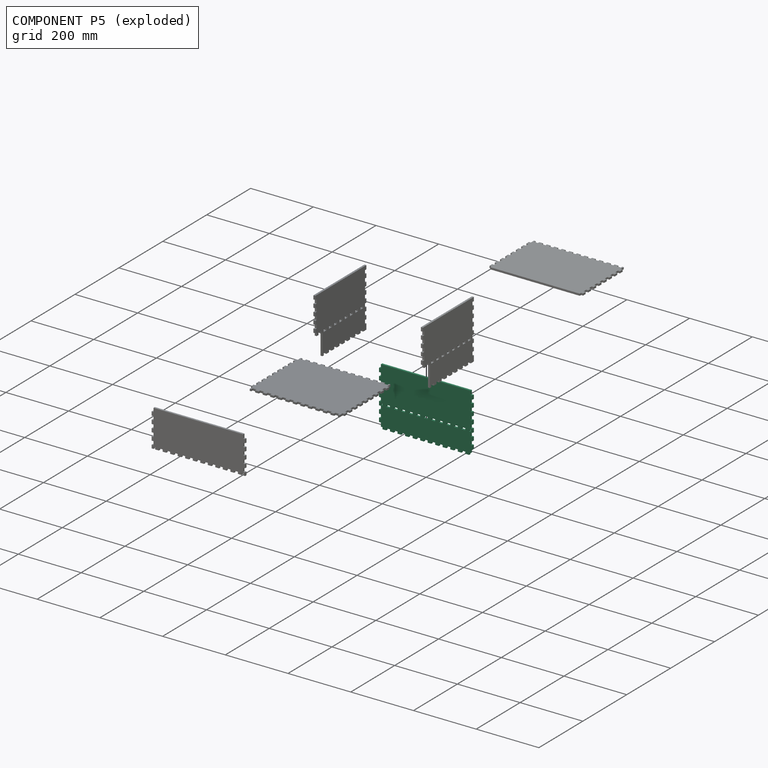
[diagram: component P5 — exploded]
COMPONENT P5 — recipe-attached (CADFS 00861205, mesh-verified: the recipe's output STEP matches this component's geometry to below the mesh-comparison resolution (tessellation chordal tolerance ~0.528 mm)).
Held by: FASTENED mate "Fastened 5" to P0; FASTENED mate "Fastened 3" to P3.
Construction recipe (FeatureScript — the CAD program that rebuilds this solid; sketch coordinates are in the units given by the * unit suffixes, e.g. mm):

FeatureScript 1511;
import(path : "onshape/std/geometry.fs", version : "1511.0");
import(path : "onshape/std/common.fs", version : "1511.0");
const mm = millimeter;
const VERTEX = EntityType.VERTEX;
const EDGE = EntityType.EDGE;
const FACE = EntityType.FACE;
const BODY = EntityType.BODY;
function v(x, y){return vector(x, y);}
function OD(order){return orderDisambiguation(order);}
function OSD(set){return originalSetDisambiguation(set);}
function TD(topology){return topologyDisambiguation(topology);}
function TDD(query){return trueDependencyDisambiguation(query);}
function sQuery(a, b, c) {return sketchEntityQuery(a, b, c);}

annotation { "Feature Type Name" : "Feature", "Feature Type Description" : "" }
export const myFeature = defineFeature(function(context is Context, id is Id, definition is map)
    precondition{}
    {
        {
            var Q0;
            Q0=qCreatedBy(makeId("Front.planeOp"),FACE);
            var sketch = newSketch(context, id + "F0", { "sketchPlane" : qUnion([Q0])});
            skLineSegment(sketch, "E0.bottom", {"start": v(143, 90) * mm, "end": v(-143, 90) * mm});
            skLineSegment(sketch, "E0.top", {"start": v(143, -90) * mm, "end": v(-143, -90) * mm});
            skLineSegment(sketch, "E0.left", {"start": v(143, 90) * mm, "end": v(143, -90) * mm});
            skLineSegment(sketch, "E0.right", {"start": v(-143, 90) * mm, "end": v(-143, -90) * mm});
            skPoint(sketch, "E0.middle", {"position": v(0, 0) * mm});
            skSolve(sketch);
        }
        {
            var Q0;
            Q0=makeQuery(id+"F0.imprint","IMPRINT",FACE,{"disambiguationData":[TD([[makeQuery(id+"F0.imprint","IMPRINT",EDGE,{"derivedFrom":sQuery(id+"F0.wireOp",EDGE,"E0.bottom")}),1.0]])]});
            extrude(context, id + "F1", {"entities" : qUnion([Q0]), "depth" : 6.2 * mm, "offsetDistance" : 25 * mm});
        }
        {
            var Q0;
            Q0=makeQuery(id+"F1.opExtrude","CAP_FACE",FACE,{"disambiguationData":[OSD([sQuery(id+"F0.wireOp",EDGE,"E0.bottom"),sQuery(id+"F0.wireOp",EDGE,"E0.top"),sQuery(id+"F0.wireOp",EDGE,"E0.left"),sQuery(id+"F0.wireOp",EDGE,"E0.right")])],"isStart":false});
            var sketch = newSketch(context, id + "F2", { "sketchPlane" : qUnion([Q0])});
            skLineSegment(sketch, "E1", {"start": v(-143, -90) * mm, "end": v(-143, -28.5) * mm, "construction": true});
            skLineSegment(sketch, "E2", {"start": v(-143, -28.5) * mm, "end": v(0, -28.5) * mm, "construction": true});
            skLineSegment(sketch, "E3", {"start": v(0, -28.5) * mm, "end": v(0, -22.3) * mm, "construction": true});
            skLineSegment(sketch, "E4.bottom", {"start": v(6, -22.3) * mm, "end": v(-6, -22.3) * mm});
            skLineSegment(sketch, "E4.top", {"start": v(6, -28.5) * mm, "end": v(-6, -28.5) * mm});
            skLineSegment(sketch, "E4.left", {"start": v(6, -22.3) * mm, "end": v(6, -28.5) * mm});
            skLineSegment(sketch, "E4.right", {"start": v(-6, -22.3) * mm, "end": v(-6, -28.5) * mm});
            skPoint(sketch, "E4.middle", {"position": v(0, -25.4) * mm});
            skLineSegment(sketch, "E5.1.0.0", {"start": v(30, -22.3) * mm, "end": v(18, -22.3) * mm});
            skLineSegment(sketch, "E5.1.0.1", {"start": v(30, -22.3) * mm, "end": v(30, -28.5) * mm});
            skLineSegment(sketch, "E5.1.0.2", {"start": v(30, -28.5) * mm, "end": v(18, -28.5) * mm});
            skLineSegment(sketch, "E5.1.0.3", {"start": v(18, -22.3) * mm, "end": v(18, -28.5) * mm});
            skLineSegment(sketch, "E5.2.0.0", {"start": v(54, -22.3) * mm, "end": v(42, -22.3) * mm});
            skLineSegment(sketch, "E5.2.0.1", {"start": v(54, -22.3) * mm, "end": v(54, -28.5) * mm});
            skLineSegment(sketch, "E5.2.0.2", {"start": v(54, -28.5) * mm, "end": v(42, -28.5) * mm});
            skLineSegment(sketch, "E5.2.0.3", {"start": v(42, -22.3) * mm, "end": v(42, -28.5) * mm});
            skLineSegment(sketch, "E5.3.0.0", {"start": v(78, -22.3) * mm, "end": v(66, -22.3) * mm});
            skLineSegment(sketch, "E5.3.0.1", {"start": v(78, -22.3) * mm, "end": v(78, -28.5) * mm});
            skLineSegment(sketch, "E5.3.0.2", {"start": v(78, -28.5) * mm, "end": v(66, -28.5) * mm});
            skLineSegment(sketch, "E5.3.0.3", {"start": v(66, -22.3) * mm, "end": v(66, -28.5) * mm});
            skLineSegment(sketch, "E5.4.0.0", {"start": v(102, -22.3) * mm, "end": v(90, -22.3) * mm});
            skLineSegment(sketch, "E5.4.0.1", {"start": v(102, -22.3) * mm, "end": v(102, -28.5) * mm});
            skLineSegment(sketch, "E5.4.0.2", {"start": v(102, -28.5) * mm, "end": v(90, -28.5) * mm});
            skLineSegment(sketch, "E5.4.0.3", {"start": v(90, -22.3) * mm, "end": v(90, -28.5) * mm});
            skLineSegment(sketch, "E5.5.0.0", {"start": v(126, -22.3) * mm, "end": v(114, -22.3) * mm});
            skLineSegment(sketch, "E5.5.0.1", {"start": v(126, -22.3) * mm, "end": v(126, -28.5) * mm});
            skLineSegment(sketch, "E5.5.0.2", {"start": v(126, -28.5) * mm, "end": v(114, -28.5) * mm});
            skLineSegment(sketch, "E5.5.0.3", {"start": v(114, -22.3) * mm, "end": v(114, -28.5) * mm});
            skLineSegment(sketch, "E5.direction1", {"start": v(-6, -22.3) * mm, "end": v(18, -22.3) * mm, "construction": true});
            skLineSegment(sketch, "E6.MirrorCS", {"start": v(-78, -22.3) * mm, "end": v(-78, -28.5) * mm});
            skLineSegment(sketch, "E7.MirrorCS", {"start": v(-66, -22.3) * mm, "end": v(-66, -28.5) * mm});
            skLineSegment(sketch, "E8.MirrorCS", {"start": v(-102, -22.3) * mm, "end": v(-102, -28.5) * mm});
            skLineSegment(sketch, "E9.MirrorCS", {"start": v(-90, -22.3) * mm, "end": v(-90, -28.5) * mm});
            skLineSegment(sketch, "E10.MirrorCS", {"start": v(-54, -22.3) * mm, "end": v(-54, -28.5) * mm});
            skLineSegment(sketch, "E11.MirrorCS", {"start": v(-42, -22.3) * mm, "end": v(-42, -28.5) * mm});
            skLineSegment(sketch, "E12.MirrorCS", {"start": v(-126, -22.3) * mm, "end": v(-126, -28.5) * mm});
            skLineSegment(sketch, "E13.MirrorCS", {"start": v(-18, -22.3) * mm, "end": v(-18, -28.5) * mm});
            skLineSegment(sketch, "E14.MirrorCS", {"start": v(-30, -22.3) * mm, "end": v(-30, -28.5) * mm});
            skLineSegment(sketch, "E15.MirrorCS", {"start": v(-114, -22.3) * mm, "end": v(-114, -28.5) * mm});
            skLineSegment(sketch, "E16.MirrorCS", {"start": v(-78, -28.5) * mm, "end": v(-66, -28.5) * mm});
            skLineSegment(sketch, "E17.MirrorCS", {"start": v(-102, -22.3) * mm, "end": v(-90, -22.3) * mm});
            skLineSegment(sketch, "E18.MirrorCS", {"start": v(-102, -28.5) * mm, "end": v(-90, -28.5) * mm});
            skLineSegment(sketch, "E19.MirrorCS", {"start": v(-126, -22.3) * mm, "end": v(-114, -22.3) * mm});
            skLineSegment(sketch, "E20.MirrorCS", {"start": v(-54, -22.3) * mm, "end": v(-42, -22.3) * mm});
            skLineSegment(sketch, "E21.MirrorCS", {"start": v(-54, -28.5) * mm, "end": v(-42, -28.5) * mm});
            skLineSegment(sketch, "E22.MirrorCS", {"start": v(-78, -22.3) * mm, "end": v(-66, -22.3) * mm});
            skLineSegment(sketch, "E23.MirrorCS", {"start": v(-126, -28.5) * mm, "end": v(-114, -28.5) * mm});
            skLineSegment(sketch, "E24.MirrorCS", {"start": v(-30, -22.3) * mm, "end": v(-18, -22.3) * mm});
            skLineSegment(sketch, "E25.MirrorCS", {"start": v(-30, -28.5) * mm, "end": v(-18, -28.5) * mm});
            skLineSegment(sketch, "E26.0.6.0", {"start": v(150, -22.3) * mm, "end": v(138, -22.3) * mm});
            skLineSegment(sketch, "E26.3.6.0", {"start": v(150, -22.3) * mm, "end": v(150, -28.5) * mm});
            skLineSegment(sketch, "E26.6.6.0", {"start": v(150, -28.5) * mm, "end": v(138, -28.5) * mm});
            skLineSegment(sketch, "E26.9.6.0", {"start": v(138, -22.3) * mm, "end": v(138, -28.5) * mm});
            skLineSegment(sketch, "E27.MirrorCS", {"start": v(-150, -22.3) * mm, "end": v(-138, -22.3) * mm});
            skLineSegment(sketch, "E28.MirrorCS", {"start": v(-150, -28.5) * mm, "end": v(-138, -28.5) * mm});
            skLineSegment(sketch, "E29.MirrorCS", {"start": v(-138, -22.3) * mm, "end": v(-138, -28.5) * mm});
            skLineSegment(sketch, "E30.MirrorCS", {"start": v(-150, -22.3) * mm, "end": v(-150, -28.5) * mm});
            skSolve(sketch);
        }
        {
            var Q0;
            Q0=makeQuery(id+"F2.imprint","IMPRINT",FACE,{"disambiguationData":[TD([[makeQuery(id+"F2.imprint","IMPRINT",EDGE,{"derivedFrom":sQuery(id+"F2.wireOp",EDGE,"E12.MirrorCS")}),1.0]])]});
            var Q1;
            Q1=makeQuery(id+"F2.imprint","IMPRINT",FACE,{"disambiguationData":[TD([[makeQuery(id+"F2.imprint","IMPRINT",EDGE,{"derivedFrom":sQuery(id+"F2.wireOp",EDGE,"E8.MirrorCS")}),1.0]])]});
            var Q2;
            Q2=makeQuery(id+"F2.imprint","IMPRINT",FACE,{"disambiguationData":[TD([[makeQuery(id+"F2.imprint","IMPRINT",EDGE,{"derivedFrom":sQuery(id+"F2.wireOp",EDGE,"E6.MirrorCS")}),1.0]])]});
            var Q3;
            Q3=makeQuery(id+"F2.imprint","IMPRINT",FACE,{"disambiguationData":[TD([[makeQuery(id+"F2.imprint","IMPRINT",EDGE,{"derivedFrom":sQuery(id+"F2.wireOp",EDGE,"E10.MirrorCS")}),1.0]])]});
            var Q4;
            Q4=makeQuery(id+"F2.imprint","IMPRINT",FACE,{"disambiguationData":[TD([[makeQuery(id+"F2.imprint","IMPRINT",EDGE,{"derivedFrom":sQuery(id+"F2.wireOp",EDGE,"E13.MirrorCS")}),-1.0]])]});
            var Q5;
            Q5=makeQuery(id+"F2.imprint","IMPRINT",FACE,{"disambiguationData":[TD([[makeQuery(id+"F2.imprint","IMPRINT",EDGE,{"derivedFrom":sQuery(id+"F2.wireOp",EDGE,"E4.bottom")}),1.0]])]});
            var Q6;
            Q6=makeQuery(id+"F2.imprint","IMPRINT",FACE,{"disambiguationData":[TD([[makeQuery(id+"F2.imprint","IMPRINT",EDGE,{"derivedFrom":sQuery(id+"F2.wireOp",EDGE,"E5.1.0.0")}),1.0]])]});
            var Q7;
            Q7=makeQuery(id+"F2.imprint","IMPRINT",FACE,{"disambiguationData":[TD([[makeQuery(id+"F2.imprint","IMPRINT",EDGE,{"derivedFrom":sQuery(id+"F2.wireOp",EDGE,"E5.2.0.0")}),1.0]])]});
            var Q8;
            Q8=makeQuery(id+"F2.imprint","IMPRINT",FACE,{"disambiguationData":[TD([[makeQuery(id+"F2.imprint","IMPRINT",EDGE,{"derivedFrom":sQuery(id+"F2.wireOp",EDGE,"E5.3.0.0")}),1.0]])]});
            var Q9;
            Q9=makeQuery(id+"F2.imprint","IMPRINT",FACE,{"disambiguationData":[TD([[makeQuery(id+"F2.imprint","IMPRINT",EDGE,{"derivedFrom":sQuery(id+"F2.wireOp",EDGE,"E5.4.0.0")}),1.0]])]});
            var Q10;
            Q10=makeQuery(id+"F2.imprint","IMPRINT",FACE,{"disambiguationData":[TD([[makeQuery(id+"F2.imprint","IMPRINT",EDGE,{"derivedFrom":sQuery(id+"F2.wireOp",EDGE,"E5.5.0.0")}),1.0]])]});
            var Q11;
            {var subQ0=sQuery(id+"F2.wireOp",EDGE,"E29.MirrorCS");Q11=makeQuery(id+"F2.imprint","IMPRINT",FACE,{"disambiguationData":[TD([[makeQuery(id+"F2.imprint","IMPRINT",EDGE,{"derivedFrom":subQ0}),-1.0]])]});}
            var Q12;
            {var subQ0=sQuery(id+"F2.wireOp",EDGE,"E26.9.6.0");Q12=makeQuery(id+"F2.imprint","IMPRINT",FACE,{"disambiguationData":[TD([[makeQuery(id+"F2.imprint","IMPRINT",EDGE,{"derivedFrom":subQ0}),1.0]])]});}
            extrude(context, id + "F3", {"entities" : qUnion([Q0, Q1, Q2, Q3, Q4, Q5, Q6, Q7, Q8, Q9, Q10, Q11, Q12]), "operationType" : NewBodyOperationType.REMOVE, "endBound" : BoundingType.THROUGH_ALL, "oppositeDirection" : true, "depth" : 25 * mm, "offsetDistance" : 25 * mm});
        }
        {
            var Q0;
            Q0=makeQuery(id+"F1.opExtrude","CAP_FACE",FACE,{"disambiguationData":[OSD([sQuery(id+"F0.wireOp",EDGE,"E0.bottom"),sQuery(id+"F0.wireOp",EDGE,"E0.top"),sQuery(id+"F0.wireOp",EDGE,"E0.left"),sQuery(id+"F0.wireOp",EDGE,"E0.right")])],"isStart":false});
            var sketch = newSketch(context, id + "F4", { "sketchPlane" : qUnion([Q0])});
            skLineSegment(sketch, "E31", {"start": v(0, -90) * mm, "end": v(6, -90) * mm, "construction": true});
            skLineSegment(sketch, "E32.bottom", {"start": v(6, -90) * mm, "end": v(18, -90) * mm});
            skLineSegment(sketch, "E32.top", {"start": v(6, -96.2) * mm, "end": v(18, -96.2) * mm});
            skLineSegment(sketch, "E32.left", {"start": v(6, -90) * mm, "end": v(6, -96.2) * mm});
            skLineSegment(sketch, "E32.right", {"start": v(18, -90) * mm, "end": v(18, -96.2) * mm});
            skLineSegment(sketch, "E33.1.0.0", {"start": v(30, -96.2) * mm, "end": v(42, -96.2) * mm});
            skLineSegment(sketch, "E33.1.0.1", {"start": v(42, -90) * mm, "end": v(42, -96.2) * mm});
            skLineSegment(sketch, "E33.1.0.2", {"start": v(30, -90) * mm, "end": v(42, -90) * mm});
            skLineSegment(sketch, "E33.1.0.3", {"start": v(30, -90) * mm, "end": v(30, -96.2) * mm});
            skLineSegment(sketch, "E33.1.0.4", {"start": v(24, -90) * mm, "end": v(30, -90) * mm, "construction": true});
            skLineSegment(sketch, "E33.2.0.0", {"start": v(54, -96.2) * mm, "end": v(66, -96.2) * mm});
            skLineSegment(sketch, "E33.2.0.1", {"start": v(66, -90) * mm, "end": v(66, -96.2) * mm});
            skLineSegment(sketch, "E33.2.0.2", {"start": v(54, -90) * mm, "end": v(66, -90) * mm});
            skLineSegment(sketch, "E33.2.0.3", {"start": v(54, -90) * mm, "end": v(54, -96.2) * mm});
            skLineSegment(sketch, "E33.2.0.4", {"start": v(48, -90) * mm, "end": v(54, -90) * mm, "construction": true});
            skLineSegment(sketch, "E33.3.0.0", {"start": v(78, -96.2) * mm, "end": v(90, -96.2) * mm});
            skLineSegment(sketch, "E33.3.0.1", {"start": v(90, -90) * mm, "end": v(90, -96.2) * mm});
            skLineSegment(sketch, "E33.3.0.2", {"start": v(78, -90) * mm, "end": v(90, -90) * mm});
            skLineSegment(sketch, "E33.3.0.3", {"start": v(78, -90) * mm, "end": v(78, -96.2) * mm});
            skLineSegment(sketch, "E33.3.0.4", {"start": v(72, -90) * mm, "end": v(78, -90) * mm, "construction": true});
            skLineSegment(sketch, "E33.4.0.0", {"start": v(102, -96.2) * mm, "end": v(114, -96.2) * mm});
            skLineSegment(sketch, "E33.4.0.1", {"start": v(114, -90) * mm, "end": v(114, -96.2) * mm});
            skLineSegment(sketch, "E33.4.0.2", {"start": v(102, -90) * mm, "end": v(114, -90) * mm});
            skLineSegment(sketch, "E33.4.0.3", {"start": v(102, -90) * mm, "end": v(102, -96.2) * mm});
            skLineSegment(sketch, "E33.4.0.4", {"start": v(96, -90) * mm, "end": v(102, -90) * mm, "construction": true});
            skLineSegment(sketch, "E33.5.0.0", {"start": v(126, -96.2) * mm, "end": v(138, -96.2) * mm});
            skLineSegment(sketch, "E33.5.0.1", {"start": v(138, -90) * mm, "end": v(138, -96.2) * mm});
            skLineSegment(sketch, "E33.5.0.2", {"start": v(126, -90) * mm, "end": v(138, -90) * mm});
            skLineSegment(sketch, "E33.5.0.3", {"start": v(126, -90) * mm, "end": v(126, -96.2) * mm});
            skLineSegment(sketch, "E33.5.0.4", {"start": v(120, -90) * mm, "end": v(126, -90) * mm, "construction": true});
            skLineSegment(sketch, "E33.direction1", {"start": v(6, -96.2) * mm, "end": v(30, -96.2) * mm, "construction": true});
            skLineSegment(sketch, "E34.MirrorCS", {"start": v(-6, -90) * mm, "end": v(-6, -96.2) * mm});
            skLineSegment(sketch, "E35.MirrorCS", {"start": v(-30, -90) * mm, "end": v(-30, -96.2) * mm});
            skLineSegment(sketch, "E36.MirrorCS", {"start": v(-42, -90) * mm, "end": v(-42, -96.2) * mm});
            skLineSegment(sketch, "E37.MirrorCS", {"start": v(-78, -90) * mm, "end": v(-78, -96.2) * mm});
            skLineSegment(sketch, "E38.MirrorCS", {"start": v(-18, -90) * mm, "end": v(-18, -96.2) * mm});
            skLineSegment(sketch, "E39.MirrorCS", {"start": v(-114, -90) * mm, "end": v(-114, -96.2) * mm});
            skLineSegment(sketch, "E40.MirrorCS", {"start": v(-102, -90) * mm, "end": v(-102, -96.2) * mm});
            skLineSegment(sketch, "E41.MirrorCS", {"start": v(-66, -90) * mm, "end": v(-66, -96.2) * mm});
            skLineSegment(sketch, "E42.MirrorCS", {"start": v(-54, -90) * mm, "end": v(-54, -96.2) * mm});
            skLineSegment(sketch, "E43.MirrorCS", {"start": v(-138, -90) * mm, "end": v(-138, -96.2) * mm});
            skLineSegment(sketch, "E44.MirrorCS", {"start": v(-126, -90) * mm, "end": v(-126, -96.2) * mm});
            skLineSegment(sketch, "E45.MirrorCS", {"start": v(-90, -90) * mm, "end": v(-90, -96.2) * mm});
            skLineSegment(sketch, "E46.MirrorCS", {"start": v(-72, -90) * mm, "end": v(-78, -90) * mm, "construction": true});
            skLineSegment(sketch, "E47.MirrorCS", {"start": v(-120, -90) * mm, "end": v(-126, -90) * mm, "construction": true});
            skLineSegment(sketch, "E48.MirrorCS", {"start": v(-6, -96.2) * mm, "end": v(-18, -96.2) * mm});
            skLineSegment(sketch, "E49.MirrorCS", {"start": v(-96, -90) * mm, "end": v(-102, -90) * mm, "construction": true});
            skLineSegment(sketch, "E50.MirrorCS", {"start": v(-48, -90) * mm, "end": v(-54, -90) * mm, "construction": true});
            skLineSegment(sketch, "E51.MirrorCS", {"start": v(-24, -90) * mm, "end": v(-30, -90) * mm, "construction": true});
            skLineSegment(sketch, "E52.MirrorCS", {"start": v(-78, -90) * mm, "end": v(-90, -90) * mm});
            skLineSegment(sketch, "E53.MirrorCS", {"start": v(-30, -96.2) * mm, "end": v(-42, -96.2) * mm});
            skLineSegment(sketch, "E54.MirrorCS", {"start": v(-102, -96.2) * mm, "end": v(-114, -96.2) * mm});
            skLineSegment(sketch, "E55.MirrorCS", {"start": v(-6, -96.2) * mm, "end": v(-30, -96.2) * mm, "construction": true});
            skLineSegment(sketch, "E56.MirrorCS", {"start": v(-6, -90) * mm, "end": v(-18, -90) * mm});
            skLineSegment(sketch, "E57.MirrorCS", {"start": v(-102, -90) * mm, "end": v(-114, -90) * mm});
            skLineSegment(sketch, "E58.MirrorCS", {"start": v(-54, -90) * mm, "end": v(-66, -90) * mm});
            skLineSegment(sketch, "E59.MirrorCS", {"start": v(-126, -96.2) * mm, "end": v(-138, -96.2) * mm});
            skLineSegment(sketch, "E60.MirrorCS", {"start": v(-54, -96.2) * mm, "end": v(-66, -96.2) * mm});
            skLineSegment(sketch, "E61.MirrorCS", {"start": v(-126, -90) * mm, "end": v(-138, -90) * mm});
            skLineSegment(sketch, "E62.MirrorCS", {"start": v(-78, -96.2) * mm, "end": v(-90, -96.2) * mm});
            skLineSegment(sketch, "E63.MirrorCS", {"start": v(-30, -90) * mm, "end": v(-42, -90) * mm});
            skSolve(sketch);
        }
        {
            var Q0;
            Q0=makeQuery(id+"F4.imprint","IMPRINT",FACE,{"disambiguationData":[TD([[makeQuery(id+"F4.imprint","IMPRINT",EDGE,{"derivedFrom":sQuery(id+"F4.wireOp",EDGE,"E43.MirrorCS")}),1.0]])]});
            var Q1;
            Q1=makeQuery(id+"F4.imprint","IMPRINT",FACE,{"disambiguationData":[TD([[makeQuery(id+"F4.imprint","IMPRINT",EDGE,{"derivedFrom":sQuery(id+"F4.wireOp",EDGE,"E39.MirrorCS")}),1.0]])]});
            var Q2;
            Q2=makeQuery(id+"F4.imprint","IMPRINT",FACE,{"disambiguationData":[TD([[makeQuery(id+"F4.imprint","IMPRINT",EDGE,{"derivedFrom":sQuery(id+"F4.wireOp",EDGE,"E37.MirrorCS")}),-1.0]])]});
            var Q3;
            Q3=makeQuery(id+"F4.imprint","IMPRINT",FACE,{"disambiguationData":[TD([[makeQuery(id+"F4.imprint","IMPRINT",EDGE,{"derivedFrom":sQuery(id+"F4.wireOp",EDGE,"E41.MirrorCS")}),1.0]])]});
            var Q4;
            Q4=makeQuery(id+"F4.imprint","IMPRINT",FACE,{"disambiguationData":[TD([[makeQuery(id+"F4.imprint","IMPRINT",EDGE,{"derivedFrom":sQuery(id+"F4.wireOp",EDGE,"E35.MirrorCS")}),-1.0]])]});
            var Q5;
            Q5=makeQuery(id+"F4.imprint","IMPRINT",FACE,{"disambiguationData":[TD([[makeQuery(id+"F4.imprint","IMPRINT",EDGE,{"derivedFrom":sQuery(id+"F4.wireOp",EDGE,"E34.MirrorCS")}),-1.0]])]});
            var Q6;
            Q6=makeQuery(id+"F4.imprint","IMPRINT",FACE,{"disambiguationData":[TD([[makeQuery(id+"F4.imprint","IMPRINT",EDGE,{"derivedFrom":sQuery(id+"F4.wireOp",EDGE,"E32.bottom")}),1.0]])]});
            var Q7;
            Q7=makeQuery(id+"F4.imprint","IMPRINT",FACE,{"disambiguationData":[TD([[makeQuery(id+"F4.imprint","IMPRINT",EDGE,{"derivedFrom":sQuery(id+"F4.wireOp",EDGE,"E33.1.0.0")}),1.0]])]});
            var Q8;
            Q8=makeQuery(id+"F4.imprint","IMPRINT",FACE,{"disambiguationData":[TD([[makeQuery(id+"F4.imprint","IMPRINT",EDGE,{"derivedFrom":sQuery(id+"F4.wireOp",EDGE,"E33.2.0.0")}),1.0]])]});
            var Q9;
            Q9=makeQuery(id+"F4.imprint","IMPRINT",FACE,{"disambiguationData":[TD([[makeQuery(id+"F4.imprint","IMPRINT",EDGE,{"derivedFrom":sQuery(id+"F4.wireOp",EDGE,"E33.3.0.0")}),1.0]])]});
            var Q10;
            Q10=makeQuery(id+"F4.imprint","IMPRINT",FACE,{"disambiguationData":[TD([[makeQuery(id+"F4.imprint","IMPRINT",EDGE,{"derivedFrom":sQuery(id+"F4.wireOp",EDGE,"E33.4.0.0")}),1.0]])]});
            var Q11;
            Q11=makeQuery(id+"F4.imprint","IMPRINT",FACE,{"disambiguationData":[TD([[makeQuery(id+"F4.imprint","IMPRINT",EDGE,{"derivedFrom":sQuery(id+"F4.wireOp",EDGE,"E33.5.0.0")}),1.0]])]});
            var Q12;
            Q12=makeQuery(id+"F1.opExtrude","CAP_FACE",FACE,{"disambiguationData":[OSD([sQuery(id+"F0.wireOp",EDGE,"E0.bottom"),sQuery(id+"F0.wireOp",EDGE,"E0.top"),sQuery(id+"F0.wireOp",EDGE,"E0.left"),sQuery(id+"F0.wireOp",EDGE,"E0.right")])],"isStart":true});
            extrude(context, id + "F5", {"entities" : qUnion([Q0, Q1, Q2, Q3, Q4, Q5, Q6, Q7, Q8, Q9, Q10, Q11]), "operationType" : NewBodyOperationType.ADD, "endBound" : BoundingType.UP_TO_SURFACE, "oppositeDirection" : true, "depth" : 25 * mm, "endBoundEntityFace" : qUnion([Q12]), "offsetDistance" : 25 * mm});
        }
        {
            var Q0;
            Q0=makeQuery(id+"F5.boolean.opBoolean","MERGE",FACE,{"derivedFrom":[makeQuery(id+"F1.opExtrude","CAP_FACE",FACE,{"disambiguationData":[OSD([sQuery(id+"F0.wireOp",EDGE,"E0.bottom"),sQuery(id+"F0.wireOp",EDGE,"E0.top"),sQuery(id+"F0.wireOp",EDGE,"E0.left"),sQuery(id+"F0.wireOp",EDGE,"E0.right")])],"isStart":false}),makeQuery(id+"F5.opExtrude","CAP_FACE",FACE,{"disambiguationData":[OSD([sQuery(id+"F4.wireOp",EDGE,"E32.bottom"),sQuery(id+"F4.wireOp",EDGE,"E32.top"),sQuery(id+"F4.wireOp",EDGE,"E32.left"),sQuery(id+"F4.wireOp",EDGE,"E32.right")])],"isStart":true}),makeQuery(id+"F5.opExtrude","CAP_FACE",FACE,{"disambiguationData":[OSD([sQuery(id+"F4.wireOp",EDGE,"E33.1.0.0"),sQuery(id+"F4.wireOp",EDGE,"E33.1.0.1"),sQuery(id+"F4.wireOp",EDGE,"E33.1.0.2"),sQuery(id+"F4.wireOp",EDGE,"E33.1.0.3")])],"isStart":true}),makeQuery(id+"F5.opExtrude","CAP_FACE",FACE,{"disambiguationData":[OSD([sQuery(id+"F4.wireOp",EDGE,"E33.2.0.0"),sQuery(id+"F4.wireOp",EDGE,"E33.2.0.1"),sQuery(id+"F4.wireOp",EDGE,"E33.2.0.2"),sQuery(id+"F4.wireOp",EDGE,"E33.2.0.3")])],"isStart":true}),makeQuery(id+"F5.opExtrude","CAP_FACE",FACE,{"disambiguationData":[OSD([sQuery(id+"F4.wireOp",EDGE,"E33.3.0.0"),sQuery(id+"F4.wireOp",EDGE,"E33.3.0.1"),sQuery(id+"F4.wireOp",EDGE,"E33.3.0.2"),sQuery(id+"F4.wireOp",EDGE,"E33.3.0.3")])],"isStart":true}),makeQuery(id+"F5.opExtrude","CAP_FACE",FACE,{"disambiguationData":[OSD([sQuery(id+"F4.wireOp",EDGE,"E33.4.0.0"),sQuery(id+"F4.wireOp",EDGE,"E33.4.0.1"),sQuery(id+"F4.wireOp",EDGE,"E33.4.0.2"),sQuery(id+"F4.wireOp",EDGE,"E33.4.0.3")])],"isStart":true}),makeQuery(id+"F5.opExtrude","CAP_FACE",FACE,{"disambiguationData":[OSD([sQuery(id+"F4.wireOp",EDGE,"E33.5.0.0"),sQuery(id+"F4.wireOp",EDGE,"E33.5.0.1"),sQuery(id+"F4.wireOp",EDGE,"E33.5.0.2"),sQuery(id+"F4.wireOp",EDGE,"E33.5.0.3")])],"isStart":true}),makeQuery(id+"F5.opExtrude","CAP_FACE",FACE,{"disambiguationData":[OSD([sQuery(id+"F4.wireOp",EDGE,"E34.MirrorCS"),sQuery(id+"F4.wireOp",EDGE,"E38.MirrorCS"),sQuery(id+"F4.wireOp",EDGE,"E48.MirrorCS"),sQuery(id+"F4.wireOp",EDGE,"E56.MirrorCS")])],"isStart":true}),makeQuery(id+"F5.opExtrude","CAP_FACE",FACE,{"disambiguationData":[OSD([sQuery(id+"F4.wireOp",EDGE,"E35.MirrorCS"),sQuery(id+"F4.wireOp",EDGE,"E36.MirrorCS"),sQuery(id+"F4.wireOp",EDGE,"E53.MirrorCS"),sQuery(id+"F4.wireOp",EDGE,"E63.MirrorCS")])],"isStart":true}),makeQuery(id+"F5.opExtrude","CAP_FACE",FACE,{"disambiguationData":[OSD([sQuery(id+"F4.wireOp",EDGE,"E37.MirrorCS"),sQuery(id+"F4.wireOp",EDGE,"E45.MirrorCS"),sQuery(id+"F4.wireOp",EDGE,"E52.MirrorCS"),sQuery(id+"F4.wireOp",EDGE,"E62.MirrorCS")])],"isStart":true}),makeQuery(id+"F5.opExtrude","CAP_FACE",FACE,{"disambiguationData":[OSD([sQuery(id+"F4.wireOp",EDGE,"E39.MirrorCS"),sQuery(id+"F4.wireOp",EDGE,"E40.MirrorCS"),sQuery(id+"F4.wireOp",EDGE,"E54.MirrorCS"),sQuery(id+"F4.wireOp",EDGE,"E57.MirrorCS")])],"isStart":true}),makeQuery(id+"F5.opExtrude","CAP_FACE",FACE,{"disambiguationData":[OSD([sQuery(id+"F4.wireOp",EDGE,"E41.MirrorCS"),sQuery(id+"F4.wireOp",EDGE,"E42.MirrorCS"),sQuery(id+"F4.wireOp",EDGE,"E58.MirrorCS"),sQuery(id+"F4.wireOp",EDGE,"E60.MirrorCS")])],"isStart":true}),makeQuery(id+"F5.opExtrude","CAP_FACE",FACE,{"disambiguationData":[OSD([sQuery(id+"F4.wireOp",EDGE,"E43.MirrorCS"),sQuery(id+"F4.wireOp",EDGE,"E44.MirrorCS"),sQuery(id+"F4.wireOp",EDGE,"E59.MirrorCS"),sQuery(id+"F4.wireOp",EDGE,"E61.MirrorCS")])],"isStart":true})]});
            var sketch = newSketch(context, id + "F6", { "sketchPlane" : qUnion([Q0])});
            skLineSegment(sketch, "E64", {"start": v(0, 0) * mm, "end": v(-143, 0) * mm, "construction": true});
            skLineSegment(sketch, "E65", {"start": v(-143, 0) * mm, "end": v(-149.2, 0) * mm, "construction": true});
            skLineSegment(sketch, "E66.bottom", {"start": v(-149.2, 6) * mm, "end": v(-143, 6) * mm});
            skLineSegment(sketch, "E66.top", {"start": v(-149.2, -6) * mm, "end": v(-143, -6) * mm});
            skLineSegment(sketch, "E66.left", {"start": v(-149.2, 6) * mm, "end": v(-149.2, -6) * mm});
            skLineSegment(sketch, "E66.right", {"start": v(-143, 6) * mm, "end": v(-143, -6) * mm});
            skPoint(sketch, "E66.middle", {"position": v(-146.1, 0) * mm});
            skLineSegment(sketch, "E67.0.1.0", {"start": v(-149.2, 30) * mm, "end": v(-143, 30) * mm});
            skLineSegment(sketch, "E67.0.1.1", {"start": v(-143, 30) * mm, "end": v(-143, 18) * mm});
            skLineSegment(sketch, "E67.0.1.2", {"start": v(-149.2, 30) * mm, "end": v(-149.2, 18) * mm});
            skLineSegment(sketch, "E67.0.1.3", {"start": v(-149.2, 18) * mm, "end": v(-143, 18) * mm});
            skLineSegment(sketch, "E67.0.2.0", {"start": v(-149.2, 54) * mm, "end": v(-143, 54) * mm});
            skLineSegment(sketch, "E67.0.2.1", {"start": v(-143, 54) * mm, "end": v(-143, 42) * mm});
            skLineSegment(sketch, "E67.0.2.2", {"start": v(-149.2, 54) * mm, "end": v(-149.2, 42) * mm});
            skLineSegment(sketch, "E67.0.2.3", {"start": v(-149.2, 42) * mm, "end": v(-143, 42) * mm});
            skLineSegment(sketch, "E67.0.3.0", {"start": v(-149.2, 78) * mm, "end": v(-143, 78) * mm});
            skLineSegment(sketch, "E67.0.3.1", {"start": v(-143, 78) * mm, "end": v(-143, 66) * mm});
            skLineSegment(sketch, "E67.0.3.2", {"start": v(-149.2, 78) * mm, "end": v(-149.2, 66) * mm});
            skLineSegment(sketch, "E67.0.3.3", {"start": v(-149.2, 66) * mm, "end": v(-143, 66) * mm});
            skLineSegment(sketch, "E67.direction1", {"start": v(-149.2, 6) * mm, "end": v(-124.2, 6) * mm, "construction": true});
            skLineSegment(sketch, "E67.direction2", {"start": v(-149.2, 6) * mm, "end": v(-149.2, 30) * mm, "construction": true});
            skLineSegment(sketch, "E68.MirrorCS", {"start": v(-149.2, -30) * mm, "end": v(-143, -30) * mm});
            skLineSegment(sketch, "E69.MirrorCS", {"start": v(-143, -30) * mm, "end": v(-143, -18) * mm});
            skLineSegment(sketch, "E70.MirrorCS", {"start": v(-149.2, -54) * mm, "end": v(-149.2, -42) * mm});
            skLineSegment(sketch, "E71.MirrorCS", {"start": v(-149.2, -78) * mm, "end": v(-143, -78) * mm});
            skLineSegment(sketch, "E72.MirrorCS", {"start": v(-143, -54) * mm, "end": v(-143, -42) * mm});
            skLineSegment(sketch, "E73.MirrorCS", {"start": v(-149.2, -42) * mm, "end": v(-143, -42) * mm});
            skLineSegment(sketch, "E74.MirrorCS", {"start": v(-149.2, -18) * mm, "end": v(-143, -18) * mm});
            skLineSegment(sketch, "E75.MirrorCS", {"start": v(-149.2, -30) * mm, "end": v(-149.2, -18) * mm});
            skLineSegment(sketch, "E76.MirrorCS", {"start": v(-149.2, -66) * mm, "end": v(-143, -66) * mm});
            skLineSegment(sketch, "E77.MirrorCS", {"start": v(-149.2, -54) * mm, "end": v(-143, -54) * mm});
            skLineSegment(sketch, "E78.MirrorCS", {"start": v(-149.2, -78) * mm, "end": v(-149.2, -66) * mm});
            skLineSegment(sketch, "E79.MirrorCS", {"start": v(-143, -78) * mm, "end": v(-143, -66) * mm});
            skLineSegment(sketch, "E80.MirrorCS", {"start": v(149.2, 6) * mm, "end": v(143, 6) * mm});
            skLineSegment(sketch, "E81.MirrorCS", {"start": v(143, 6) * mm, "end": v(143, -6) * mm});
            skLineSegment(sketch, "E82.MirrorCS", {"start": v(149.2, 6) * mm, "end": v(149.2, -6) * mm});
            skLineSegment(sketch, "E83.MirrorCS", {"start": v(143, 0) * mm, "end": v(149.2, 0) * mm, "construction": true});
            skLineSegment(sketch, "E84.MirrorCS", {"start": v(149.2, 30) * mm, "end": v(143, 30) * mm});
            skLineSegment(sketch, "E85.MirrorCS", {"start": v(149.2, 30) * mm, "end": v(149.2, 18) * mm});
            skLineSegment(sketch, "E86.MirrorCS", {"start": v(149.2, -6) * mm, "end": v(143, -6) * mm});
            skLineSegment(sketch, "E87.MirrorCS", {"start": v(149.2, -18) * mm, "end": v(143, -18) * mm});
            skLineSegment(sketch, "E88.MirrorCS", {"start": v(143, 30) * mm, "end": v(143, 18) * mm});
            skLineSegment(sketch, "E89.MirrorCS", {"start": v(149.2, 6) * mm, "end": v(149.2, 30) * mm, "construction": true});
            skLineSegment(sketch, "E90.MirrorCS", {"start": v(143, -78) * mm, "end": v(143, -66) * mm});
            skLineSegment(sketch, "E91.MirrorCS", {"start": v(149.2, -30) * mm, "end": v(143, -30) * mm});
            skLineSegment(sketch, "E92.MirrorCS", {"start": v(149.2, -54) * mm, "end": v(149.2, -42) * mm});
            skLineSegment(sketch, "E93.MirrorCS", {"start": v(149.2, -78) * mm, "end": v(143, -78) * mm});
            skLineSegment(sketch, "E94.MirrorCS", {"start": v(149.2, 18) * mm, "end": v(143, 18) * mm});
            skLineSegment(sketch, "E95.MirrorCS", {"start": v(149.2, 78) * mm, "end": v(149.2, 66) * mm});
            skLineSegment(sketch, "E96.MirrorCS", {"start": v(149.2, 66) * mm, "end": v(143, 66) * mm});
            skLineSegment(sketch, "E97.MirrorCS", {"start": v(149.2, 54) * mm, "end": v(143, 54) * mm});
            skLineSegment(sketch, "E98.MirrorCS", {"start": v(149.2, -66) * mm, "end": v(143, -66) * mm});
            skLineSegment(sketch, "E99.MirrorCS", {"start": v(143, 54) * mm, "end": v(143, 42) * mm});
            skLineSegment(sketch, "E100.MirrorCS", {"start": v(149.2, -42) * mm, "end": v(143, -42) * mm});
            skLineSegment(sketch, "E101.MirrorCS", {"start": v(149.2, 54) * mm, "end": v(149.2, 42) * mm});
            skLineSegment(sketch, "E102.MirrorCS", {"start": v(149.2, 42) * mm, "end": v(143, 42) * mm});
            skLineSegment(sketch, "E103.MirrorCS", {"start": v(149.2, 78) * mm, "end": v(143, 78) * mm});
            skLineSegment(sketch, "E104.MirrorCS", {"start": v(143, -30) * mm, "end": v(143, -18) * mm});
            skLineSegment(sketch, "E105.MirrorCS", {"start": v(143, -54) * mm, "end": v(143, -42) * mm});
            skLineSegment(sketch, "E106.MirrorCS", {"start": v(149.2, -54) * mm, "end": v(143, -54) * mm});
            skLineSegment(sketch, "E107.MirrorCS", {"start": v(149.2, -30) * mm, "end": v(149.2, -18) * mm});
            skLineSegment(sketch, "E108.MirrorCS", {"start": v(149.2, -78) * mm, "end": v(149.2, -66) * mm});
            skLineSegment(sketch, "E109.MirrorCS", {"start": v(143, 78) * mm, "end": v(143, 66) * mm});
            skLineSegment(sketch, "E110.MirrorCS", {"start": v(149.2, 6) * mm, "end": v(124.2, 6) * mm, "construction": true});
            skPoint(sketch, "E111.MirrorP", {"position": v(146.1, 0) * mm});
            skSolve(sketch);
        }
        {
            var Q0;
            Q0 = qSketchRegion(id + "F6", true);
            extrude(context, id + "F7", {"entities" : qUnion([Q0]), "operationType" : NewBodyOperationType.ADD, "oppositeDirection" : true, "depth" : 6.2 * mm, "offsetDistance" : 25 * mm});
        }
    });
